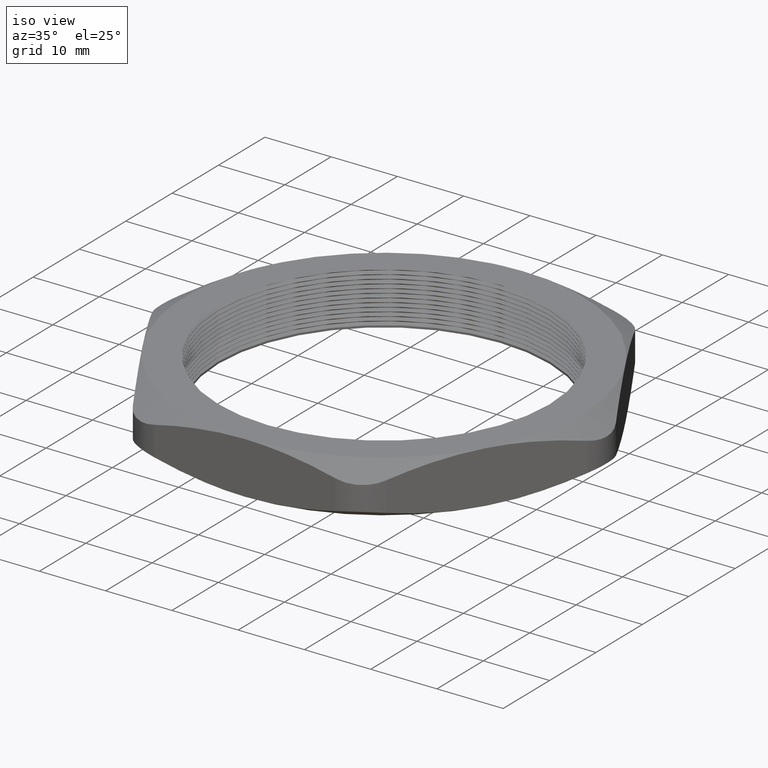
[diagram: clean part render]
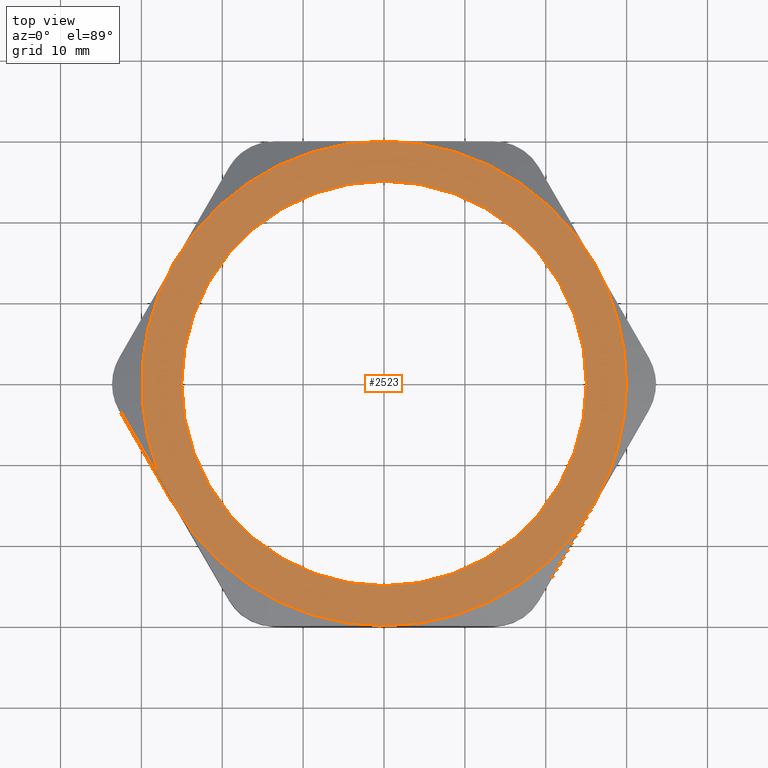
[diagram: tour spotlight — one face highlighted and labeled with its STEP entity id]
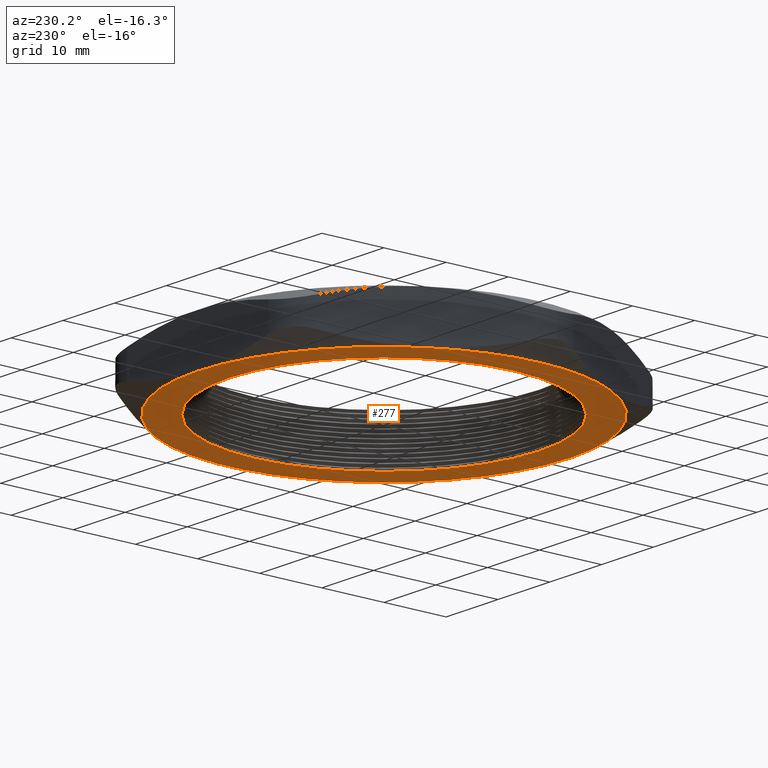
[diagram: tour spotlight — one face highlighted and labeled with its STEP entity id]
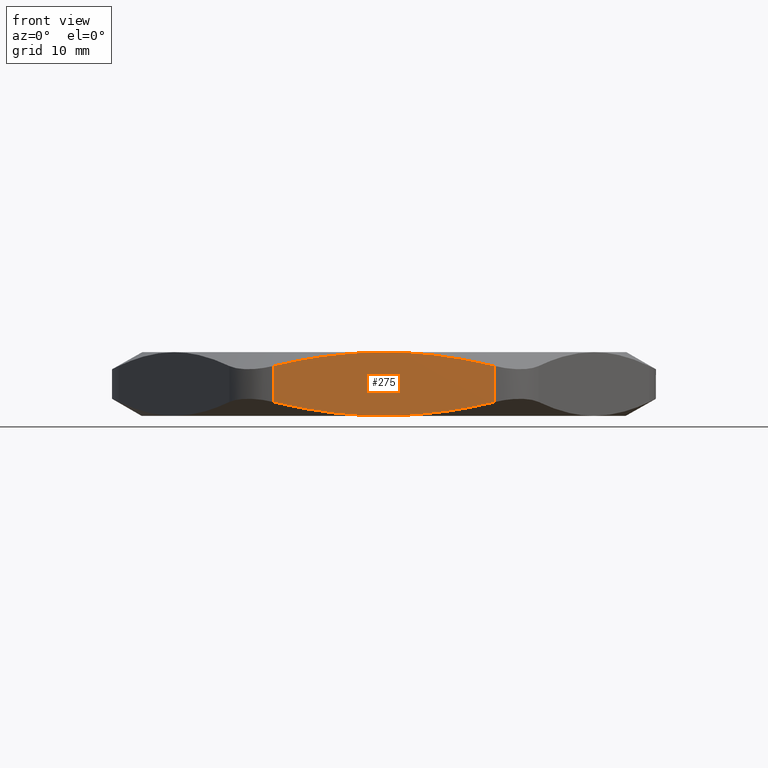
[diagram: tour spotlight — one face highlighted and labeled with its STEP entity id]
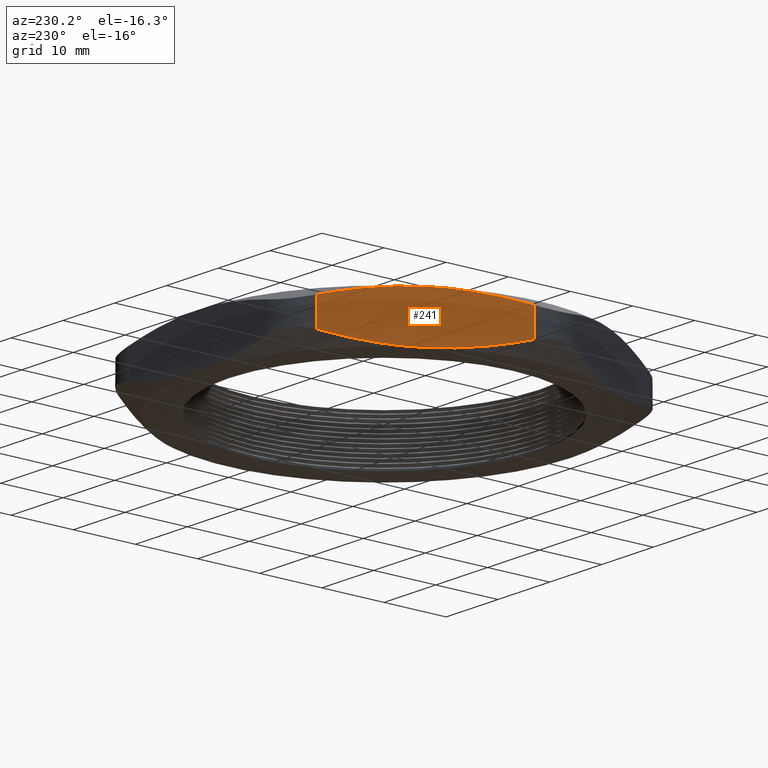
[diagram: tour spotlight — one face highlighted and labeled with its STEP entity id]
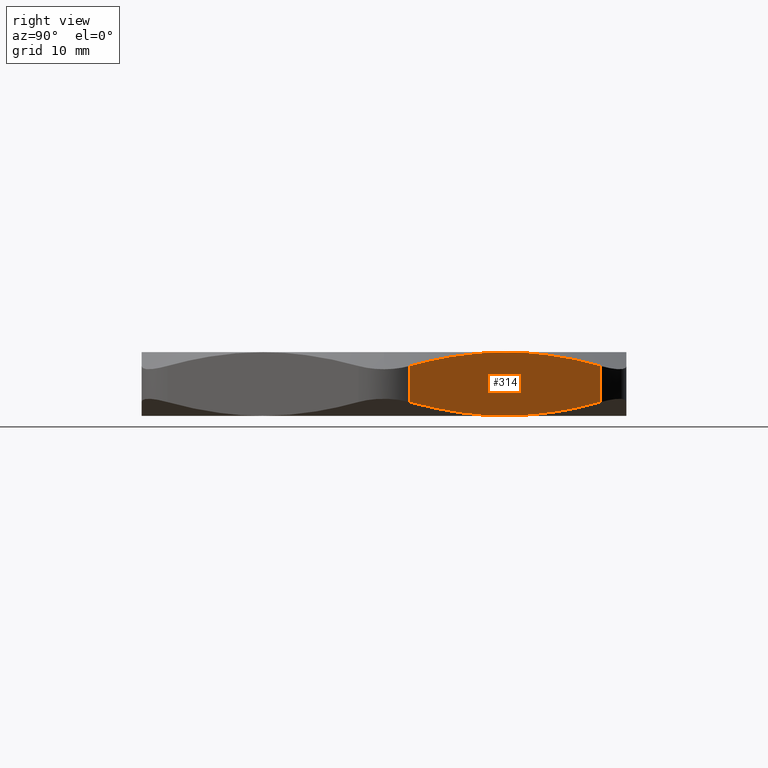
[diagram: tour spotlight — one face highlighted and labeled with its STEP entity id]
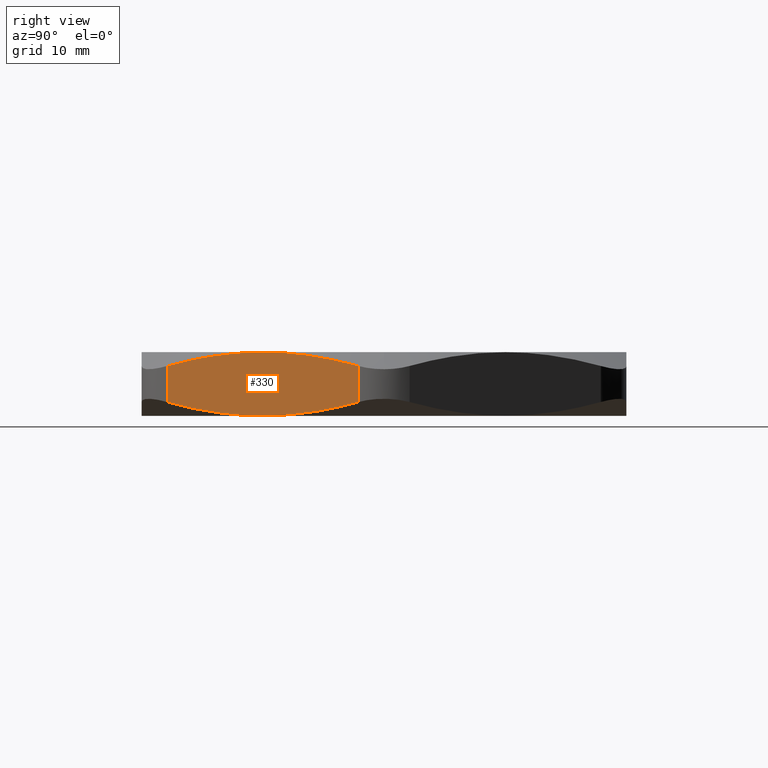
[diagram: tour spotlight — one face highlighted and labeled with its STEP entity id]
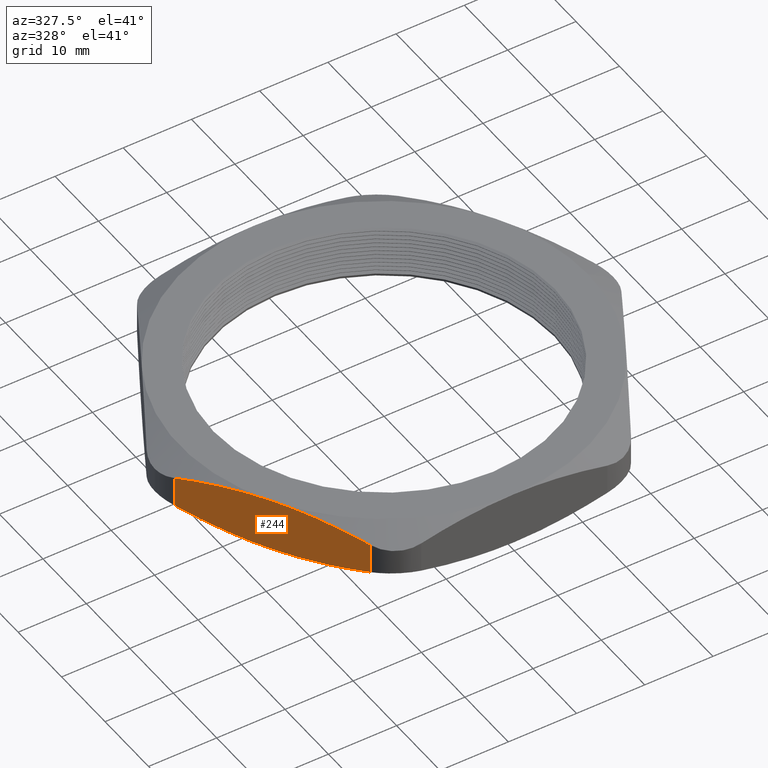
[diagram: tour spotlight — one face highlighted and labeled with its STEP entity id]
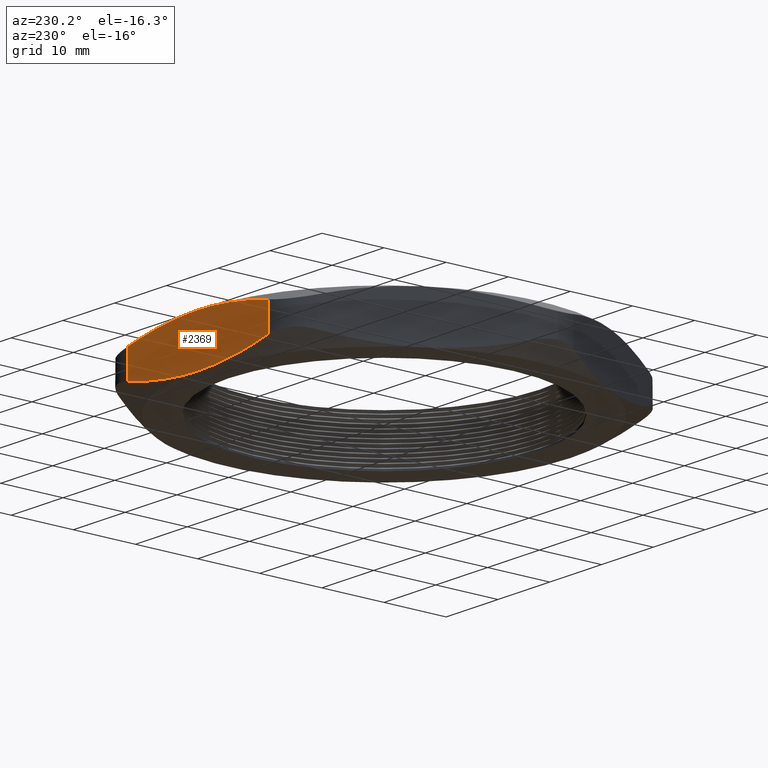
[diagram: tour spotlight — one face highlighted and labeled with its STEP entity id]
A machine part: a face-by-face anatomy tour. The part has 101 B-rep faces; the first image is the clean iso view, then the 8 largest visible faces are spotlighted one at a time (largest first), each with its STEP entity span.

Face 1 — top view, entity #2523. In plain terms, the highlighted planar face has unit normal (0, 0, -1).
Definition (entity closure, byte-faithful):
#208 = VERTEX_POINT ( 'NONE', #739 ) ;
#255 = VERTEX_POINT ( 'NONE', #869 ) ;
#268 = VERTEX_POINT ( 'NONE', #888 ) ;
#290 = VERTEX_POINT ( 'NONE', #953 ) ;
#340 = VERTEX_POINT ( 'NONE', #1065 ) ;
#379 = VERTEX_POINT ( 'NONE', #815 ) ;
#380 = VERTEX_POINT ( 'NONE', #814 ) ;
#382 = EDGE_CURVE ( 'NONE', #380, #379, #1106, .T. ) ;
#739 = CARTESIAN_POINT ( 'NONE',  ( -1.021909976465637600, 0.5900000000000000800, 0.3100000000000000000 ) ) ;
#814 = CARTESIAN_POINT ( 'NONE',  ( 1.180000000000000200, 0.0000000000000000000, 0.3100000000000000000 ) ) ;
#815 = CARTESIAN_POINT ( 'NONE',  ( 1.021909976465638500, 0.5900000000000003000, 0.3100000000000000000 ) ) ;
#869 = CARTESIAN_POINT ( 'NONE',  ( -1.021909976465637900, -0.5899999999999998600, 0.3100000000000000000 ) ) ;
#888 = CARTESIAN_POINT ( 'NONE',  ( 1.182924880895400800E-016, -1.179999999999999900, 0.3100000000000000000 ) ) ;
#953 = CARTESIAN_POINT ( 'NONE',  ( 0.0000000000000000000, 1.180000000000000200, 0.3100000000000000000 ) ) ;
#1065 = CARTESIAN_POINT ( 'NONE',  ( 1.021909976465637600, -0.5900000000000000800, 0.3100000000000000000 ) ) ;
#1102 = DIRECTION ( 'NONE',  ( 1.000000000000000000, 0.0000000000000000000, 0.0000000000000000000 ) ) ;
#1103 = DIRECTION ( 'NONE',  ( 0.0000000000000000000, 0.0000000000000000000, 1.000000000000000000 ) ) ;
#1104 = CARTESIAN_POINT ( 'NONE',  ( 0.0000000000000000000, 0.0000000000000000000, 0.3100000000000000000 ) ) ;
#1105 = AXIS2_PLACEMENT_3D ( 'NONE', #1104, #1103, #1102 ) ;
#1106 = CIRCLE ( 'NONE', #1105, 1.180000000000000200 ) ;
#1389 = CIRCLE ( 'NONE', #1448, 0.9849999999999999900 ) ;
#1439 = DIRECTION ( 'NONE',  ( -1.000000000000000000, 0.0000000000000000000, 0.0000000000000000000 ) ) ;
#1440 = DIRECTION ( 'NONE',  ( 0.0000000000000000000, 0.0000000000000000000, -1.000000000000000000 ) ) ;
#1441 = CARTESIAN_POINT ( 'NONE',  ( 2.731847993664263200E-016, 2.360000000000001200, 0.3100000000000000000 ) ) ;
#1442 = AXIS2_PLACEMENT_3D ( 'NONE', #1441, #1440, #1439 ) ;
#1443 = PLANE ( 'NONE',  #1442 ) ;
#1444 = FACE_OUTER_BOUND ( 'NONE', #2534, .T. ) ;
#1445 = DIRECTION ( 'NONE',  ( 1.000000000000000000, 0.0000000000000000000, 0.0000000000000000000 ) ) ;
#1446 = DIRECTION ( 'NONE',  ( 0.0000000000000000000, 0.0000000000000000000, 1.000000000000000000 ) ) ;
#1447 = CARTESIAN_POINT ( 'NONE',  ( 0.0000000000000000000, 0.0000000000000000000, 0.3100000000000000000 ) ) ;
#1448 = AXIS2_PLACEMENT_3D ( 'NONE', #1447, #1446, #1445 ) ;
#1449 = FACE_BOUND ( 'NONE', #2639, .T. ) ;
#1980 = DIRECTION ( 'NONE',  ( 1.000000000000000000, 0.0000000000000000000, 0.0000000000000000000 ) ) ;
#1981 = DIRECTION ( 'NONE',  ( 0.0000000000000000000, 0.0000000000000000000, 1.000000000000000000 ) ) ;
#1982 = CARTESIAN_POINT ( 'NONE',  ( 0.0000000000000000000, 0.0000000000000000000, 0.3100000000000000000 ) ) ;
#1983 = AXIS2_PLACEMENT_3D ( 'NONE', #1982, #1981, #1980 ) ;
#1984 = CIRCLE ( 'NONE', #1983, 0.9849999999999999900 ) ;
#1985 = CARTESIAN_POINT ( 'NONE',  ( 0.9849999999999999900, 1.218523565151616600E-016, 0.3100000000000000000 ) ) ;
#1986 = CARTESIAN_POINT ( 'NONE',  ( -0.9849999999999999900, 0.0000000000000000000, 0.3100000000000000000 ) ) ;
#2118 = DIRECTION ( 'NONE',  ( 0.0000000000000000000, 0.0000000000000000000, 1.000000000000000000 ) ) ;
#2119 = CARTESIAN_POINT ( 'NONE',  ( 0.0000000000000000000, 0.0000000000000000000, 0.3100000000000000000 ) ) ;
#2120 = AXIS2_PLACEMENT_3D ( 'NONE', #2119, #2118, #2166 ) ;
#2121 = CIRCLE ( 'NONE', #2120, 1.180000000000000200 ) ;
#2122 = CARTESIAN_POINT ( 'NONE',  ( 0.0000000000000000000, 0.0000000000000000000, 0.3100000000000000000 ) ) ;
#2144 = CARTESIAN_POINT ( 'NONE',  ( 0.0000000000000000000, 0.0000000000000000000, 0.3100000000000000000 ) ) ;
#2145 = AXIS2_PLACEMENT_3D ( 'NONE', #2144, #2211, #2210 ) ;
#2146 = CIRCLE ( 'NONE', #2145, 1.180000000000000200 ) ;
#2147 = DIRECTION ( 'NONE',  ( 1.000000000000000000, 0.0000000000000000000, 0.0000000000000000000 ) ) ;
#2148 = DIRECTION ( 'NONE',  ( 0.0000000000000000000, 0.0000000000000000000, 1.000000000000000000 ) ) ;
#2149 = CARTESIAN_POINT ( 'NONE',  ( 0.0000000000000000000, 0.0000000000000000000, 0.3100000000000000000 ) ) ;
#2150 = AXIS2_PLACEMENT_3D ( 'NONE', #2149, #2148, #2147 ) ;
#2151 = CIRCLE ( 'NONE', #2150, 1.180000000000000200 ) ;
#2152 = DIRECTION ( 'NONE',  ( 1.000000000000000000, 0.0000000000000000000, 0.0000000000000000000 ) ) ;
#2153 = DIRECTION ( 'NONE',  ( 0.0000000000000000000, 0.0000000000000000000, 1.000000000000000000 ) ) ;
#2154 = CARTESIAN_POINT ( 'NONE',  ( 0.0000000000000000000, 0.0000000000000000000, 0.3100000000000000000 ) ) ;
#2155 = AXIS2_PLACEMENT_3D ( 'NONE', #2154, #2153, #2152 ) ;
#2156 = CIRCLE ( 'NONE', #2155, 1.180000000000000200 ) ;
#2157 = DIRECTION ( 'NONE',  ( 1.000000000000000000, 0.0000000000000000000, 0.0000000000000000000 ) ) ;
#2158 = DIRECTION ( 'NONE',  ( 0.0000000000000000000, 0.0000000000000000000, 1.000000000000000000 ) ) ;
#2159 = CARTESIAN_POINT ( 'NONE',  ( 0.0000000000000000000, 0.0000000000000000000, 0.3100000000000000000 ) ) ;
#2160 = AXIS2_PLACEMENT_3D ( 'NONE', #2159, #2158, #2157 ) ;
#2161 = CIRCLE ( 'NONE', #2160, 1.180000000000000200 ) ;
#2162 = DIRECTION ( 'NONE',  ( 1.000000000000000000, 0.0000000000000000000, 0.0000000000000000000 ) ) ;
#2163 = DIRECTION ( 'NONE',  ( 0.0000000000000000000, 0.0000000000000000000, 1.000000000000000000 ) ) ;
#2164 = AXIS2_PLACEMENT_3D ( 'NONE', #2122, #2163, #2162 ) ;
#2165 = CIRCLE ( 'NONE', #2164, 1.180000000000000200 ) ;
#2166 = DIRECTION ( 'NONE',  ( 1.000000000000000000, 0.0000000000000000000, 0.0000000000000000000 ) ) ;
#2210 = DIRECTION ( 'NONE',  ( 1.000000000000000000, 0.0000000000000000000, 0.0000000000000000000 ) ) ;
#2211 = DIRECTION ( 'NONE',  ( 0.0000000000000000000, 0.0000000000000000000, 1.000000000000000000 ) ) ;
#2515 = ORIENTED_EDGE ( 'NONE', *, *, #2904, .T. ) ;
#2518 = EDGE_CURVE ( 'NONE', #2790, #2789, #1389, .T. ) ;
#2519 = ORIENTED_EDGE ( 'NONE', *, *, #2791, .F. ) ;
#2520 = ORIENTED_EDGE ( 'NONE', *, *, #2518, .F. ) ;
#2523 = ADVANCED_FACE ( 'NONE', ( #1449, #1444 ), #1443, .F. ) ;
#2534 = EDGE_LOOP ( 'NONE', ( #2515, #2900, #2898, #2896, #2893, #2891, #2892 ) ) ;
#2639 = EDGE_LOOP ( 'NONE', ( #2519, #2520 ) ) ;
#2789 = VERTEX_POINT ( 'NONE', #1986 ) ;
#2790 = VERTEX_POINT ( 'NONE', #1985 ) ;
#2791 = EDGE_CURVE ( 'NONE', #2789, #2790, #1984, .T. ) ;
#2890 = EDGE_CURVE ( 'NONE', #379, #290, #2121, .T. ) ;
#2891 = ORIENTED_EDGE ( 'NONE', *, *, #382, .T. ) ;
#2892 = ORIENTED_EDGE ( 'NONE', *, *, #2890, .T. ) ;
#2893 = ORIENTED_EDGE ( 'NONE', *, *, #2894, .T. ) ;
#2894 = EDGE_CURVE ( 'NONE', #340, #380, #2165, .T. ) ;
#2895 = EDGE_CURVE ( 'NONE', #268, #340, #2161, .T. ) ;
#2896 = ORIENTED_EDGE ( 'NONE', *, *, #2895, .T. ) ;
#2898 = ORIENTED_EDGE ( 'NONE', *, *, #2899, .T. ) ;
#2899 = EDGE_CURVE ( 'NONE', #255, #268, #2156, .T. ) ;
#2900 = ORIENTED_EDGE ( 'NONE', *, *, #2902, .T. ) ;
#2902 = EDGE_CURVE ( 'NONE', #208, #255, #2151, .T. ) ;
#2904 = EDGE_CURVE ( 'NONE', #290, #208, #2146, .T. ) ;

Face 2 — auxiliary view, entity #277. In plain terms, the highlighted planar face has unit normal (0, 0, -1).
Definition (entity closure, byte-faithful):
#28 = ORIENTED_EDGE ( 'NONE', *, *, #29, .T. ) ;
#29 = EDGE_CURVE ( 'NONE', #335, #284, #404, .T. ) ;
#120 = EDGE_CURVE ( 'NONE', #126, #135, #592, .T. ) ;
#126 = VERTEX_POINT ( 'NONE', #573 ) ;
#134 = EDGE_CURVE ( 'NONE', #135, #126, #623, .T. ) ;
#135 = VERTEX_POINT ( 'NONE', #619 ) ;
#249 = VERTEX_POINT ( 'NONE', #829 ) ;
#277 = ADVANCED_FACE ( 'NONE', ( #921, #920 ), #917, .T. ) ;
#278 = EDGE_LOOP ( 'NONE', ( #279, #280 ) ) ;
#279 = ORIENTED_EDGE ( 'NONE', *, *, #134, .T. ) ;
#280 = ORIENTED_EDGE ( 'NONE', *, *, #120, .T. ) ;
#281 = EDGE_LOOP ( 'NONE', ( #341, #343, #344, #346, #348, #28, #2513 ) ) ;
#284 = VERTEX_POINT ( 'NONE', #899 ) ;
#321 = VERTEX_POINT ( 'NONE', #998 ) ;
#335 = VERTEX_POINT ( 'NONE', #1018 ) ;
#341 = ORIENTED_EDGE ( 'NONE', *, *, #342, .T. ) ;
#342 = EDGE_CURVE ( 'NONE', #249, #2507, #1064, .T. ) ;
#343 = ORIENTED_EDGE ( 'NONE', *, *, #2509, .T. ) ;
#344 = ORIENTED_EDGE ( 'NONE', *, *, #345, .T. ) ;
#345 = EDGE_CURVE ( 'NONE', #2752, #598, #1059, .T. ) ;
#346 = ORIENTED_EDGE ( 'NONE', *, *, #347, .T. ) ;
#347 = EDGE_CURVE ( 'NONE', #598, #321, #1054, .T. ) ;
#348 = ORIENTED_EDGE ( 'NONE', *, *, #349, .T. ) ;
#349 = EDGE_CURVE ( 'NONE', #321, #335, #1048, .T. ) ;
#401 = DIRECTION ( 'NONE',  ( -1.000000000000000000, 0.0000000000000000000, 0.0000000000000000000 ) ) ;
#402 = DIRECTION ( 'NONE',  ( 0.0000000000000000000, 0.0000000000000000000, -1.000000000000000000 ) ) ;
#403 = AXIS2_PLACEMENT_3D ( 'NONE', #409, #402, #401 ) ;
#404 = CIRCLE ( 'NONE', #403, 1.180000000000000200 ) ;
#409 = CARTESIAN_POINT ( 'NONE',  ( 0.0000000000000000000, 0.0000000000000000000, 0.0000000000000000000 ) ) ;
#573 = CARTESIAN_POINT ( 'NONE',  ( 0.9849999999999999900, 1.206277097160143100E-016, 0.0000000000000000000 ) ) ;
#588 = DIRECTION ( 'NONE',  ( 1.000000000000000000, 0.0000000000000000000, 0.0000000000000000000 ) ) ;
#589 = DIRECTION ( 'NONE',  ( 0.0000000000000000000, 0.0000000000000000000, 1.000000000000000000 ) ) ;
#590 = CARTESIAN_POINT ( 'NONE',  ( 0.0000000000000000000, 0.0000000000000000000, 0.0000000000000000000 ) ) ;
#591 = AXIS2_PLACEMENT_3D ( 'NONE', #590, #589, #588 ) ;
#592 = CIRCLE ( 'NONE', #591, 0.9849999999999999900 ) ;
#598 = VERTEX_POINT ( 'NONE', #1095 ) ;
#619 = CARTESIAN_POINT ( 'NONE',  ( -0.9849999999999999900, 0.0000000000000000000, 0.0000000000000000000 ) ) ;
#620 = DIRECTION ( 'NONE',  ( 1.000000000000000000, 0.0000000000000000000, 0.0000000000000000000 ) ) ;
#621 = DIRECTION ( 'NONE',  ( 0.0000000000000000000, 0.0000000000000000000, 1.000000000000000000 ) ) ;
#622 = AXIS2_PLACEMENT_3D ( 'NONE', #627, #621, #620 ) ;
#623 = CIRCLE ( 'NONE', #622, 0.9849999999999999900 ) ;
#627 = CARTESIAN_POINT ( 'NONE',  ( 0.0000000000000000000, 0.0000000000000000000, 0.0000000000000000000 ) ) ;
#829 = CARTESIAN_POINT ( 'NONE',  ( -1.021909976465638100, -0.5899999999999997500, 0.0000000000000000000 ) ) ;
#899 = CARTESIAN_POINT ( 'NONE',  ( 1.182924880895401000E-016, -1.180000000000000200, 0.0000000000000000000 ) ) ;
#904 = DIRECTION ( 'NONE',  ( -1.000000000000000000, 0.0000000000000000000, 0.0000000000000000000 ) ) ;
#905 = DIRECTION ( 'NONE',  ( 0.0000000000000000000, 0.0000000000000000000, -1.000000000000000000 ) ) ;
#906 = AXIS2_PLACEMENT_3D ( 'NONE', #918, #905, #904 ) ;
#917 = PLANE ( 'NONE',  #906 ) ;
#918 = CARTESIAN_POINT ( 'NONE',  ( 2.731847993664263200E-016, 2.360000000000001200, 0.0000000000000000000 ) ) ;
#920 = FACE_OUTER_BOUND ( 'NONE', #281, .T. ) ;
#921 = FACE_BOUND ( 'NONE', #278, .T. ) ;
#998 = CARTESIAN_POINT ( 'NONE',  ( 1.021909976465637900, 0.5899999999999999700, 0.0000000000000000000 ) ) ;
#1018 = CARTESIAN_POINT ( 'NONE',  ( 1.021909976465637600, -0.5900000000000001900, 0.0000000000000000000 ) ) ;
#1044 = DIRECTION ( 'NONE',  ( -1.000000000000000000, 0.0000000000000000000, 0.0000000000000000000 ) ) ;
#1045 = DIRECTION ( 'NONE',  ( 0.0000000000000000000, 0.0000000000000000000, -1.000000000000000000 ) ) ;
#1046 = CARTESIAN_POINT ( 'NONE',  ( 0.0000000000000000000, 0.0000000000000000000, 0.0000000000000000000 ) ) ;
#1047 = AXIS2_PLACEMENT_3D ( 'NONE', #1046, #1045, #1044 ) ;
#1048 = CIRCLE ( 'NONE', #1047, 1.180000000000000200 ) ;
#1050 = DIRECTION ( 'NONE',  ( -1.000000000000000000, 0.0000000000000000000, 0.0000000000000000000 ) ) ;
#1051 = DIRECTION ( 'NONE',  ( 0.0000000000000000000, 0.0000000000000000000, -1.000000000000000000 ) ) ;
#1052 = CARTESIAN_POINT ( 'NONE',  ( 0.0000000000000000000, 0.0000000000000000000, 0.0000000000000000000 ) ) ;
#1053 = AXIS2_PLACEMENT_3D ( 'NONE', #1052, #1051, #1050 ) ;
#1054 = CIRCLE ( 'NONE', #1053, 1.180000000000000200 ) ;
#1055 = DIRECTION ( 'NONE',  ( -1.000000000000000000, 0.0000000000000000000, 0.0000000000000000000 ) ) ;
#1056 = DIRECTION ( 'NONE',  ( 0.0000000000000000000, 0.0000000000000000000, -1.000000000000000000 ) ) ;
#1057 = CARTESIAN_POINT ( 'NONE',  ( 0.0000000000000000000, 0.0000000000000000000, 0.0000000000000000000 ) ) ;
#1058 = AXIS2_PLACEMENT_3D ( 'NONE', #1057, #1056, #1055 ) ;
#1059 = CIRCLE ( 'NONE', #1058, 1.180000000000000200 ) ;
#1060 = DIRECTION ( 'NONE',  ( -1.000000000000000000, 0.0000000000000000000, 0.0000000000000000000 ) ) ;
#1061 = DIRECTION ( 'NONE',  ( 0.0000000000000000000, 0.0000000000000000000, -1.000000000000000000 ) ) ;
#1062 = CARTESIAN_POINT ( 'NONE',  ( 0.0000000000000000000, 0.0000000000000000000, 0.0000000000000000000 ) ) ;
#1063 = AXIS2_PLACEMENT_3D ( 'NONE', #1062, #1061, #1060 ) ;
#1064 = CIRCLE ( 'NONE', #1063, 1.180000000000000200 ) ;
#1095 = CARTESIAN_POINT ( 'NONE',  ( 0.0000000000000000000, 1.180000000000000200, 0.0000000000000000000 ) ) ;
#1396 = DIRECTION ( 'NONE',  ( -1.000000000000000000, 0.0000000000000000000, 0.0000000000000000000 ) ) ;
#1397 = DIRECTION ( 'NONE',  ( 0.0000000000000000000, 0.0000000000000000000, -1.000000000000000000 ) ) ;
#1398 = CARTESIAN_POINT ( 'NONE',  ( 0.0000000000000000000, 0.0000000000000000000, 0.0000000000000000000 ) ) ;
#1399 = AXIS2_PLACEMENT_3D ( 'NONE', #1398, #1397, #1396 ) ;
#1400 = CIRCLE ( 'NONE', #1399, 1.180000000000000200 ) ;
#1411 = DIRECTION ( 'NONE',  ( -1.000000000000000000, 0.0000000000000000000, 0.0000000000000000000 ) ) ;
#1412 = DIRECTION ( 'NONE',  ( 0.0000000000000000000, 0.0000000000000000000, -1.000000000000000000 ) ) ;
#1413 = CARTESIAN_POINT ( 'NONE',  ( 0.0000000000000000000, 0.0000000000000000000, 0.0000000000000000000 ) ) ;
#1414 = AXIS2_PLACEMENT_3D ( 'NONE', #1413, #1412, #1411 ) ;
#1415 = CIRCLE ( 'NONE', #1414, 1.180000000000000200 ) ;
#1416 = CARTESIAN_POINT ( 'NONE',  ( -1.180000000000000200, 0.0000000000000000000, 0.0000000000000000000 ) ) ;
#1893 = CARTESIAN_POINT ( 'NONE',  ( -1.021909976465637600, 0.5900000000000001900, 0.0000000000000000000 ) ) ;
#2507 = VERTEX_POINT ( 'NONE', #1416 ) ;
#2509 = EDGE_CURVE ( 'NONE', #2507, #2752, #1415, .T. ) ;
#2513 = ORIENTED_EDGE ( 'NONE', *, *, #2514, .T. ) ;
#2514 = EDGE_CURVE ( 'NONE', #284, #249, #1400, .T. ) ;
#2752 = VERTEX_POINT ( 'NONE', #1893 ) ;

Face 3 — front view, entity #275. In plain terms, the highlighted planar face has unit normal (-0, 1, 0).
Definition (entity closure, byte-faithful):
#45 = VERTEX_POINT ( 'NONE', #431 ) ;
#46 = ORIENTED_EDGE ( 'NONE', *, *, #282, .T. ) ;
#268 = VERTEX_POINT ( 'NONE', #888 ) ;
#269 = EDGE_CURVE ( 'NONE', #268, #45, #887, .T. ) ;
#270 = ORIENTED_EDGE ( 'NONE', *, *, #272, .F. ) ;
#271 = VERTEX_POINT ( 'NONE', #886 ) ;
#272 = EDGE_CURVE ( 'NONE', #273, #268, #874, .T. ) ;
#273 = VERTEX_POINT ( 'NONE', #873 ) ;
#274 = ORIENTED_EDGE ( 'NONE', *, *, #326, .T. ) ;
#275 = ADVANCED_FACE ( 'NONE', ( #875 ), #872, .F. ) ;
#282 = EDGE_CURVE ( 'NONE', #271, #45, #903, .T. ) ;
#283 = ORIENTED_EDGE ( 'NONE', *, *, #2535, .F. ) ;
#284 = VERTEX_POINT ( 'NONE', #899 ) ;
#326 = EDGE_CURVE ( 'NONE', #273, #327, #1036, .T. ) ;
#327 = VERTEX_POINT ( 'NONE', #1032 ) ;
#328 = ORIENTED_EDGE ( 'NONE', *, *, #329, .F. ) ;
#329 = EDGE_CURVE ( 'NONE', #284, #327, #1031, .T. ) ;
#350 = EDGE_LOOP ( 'NONE', ( #283, #46, #351, #270, #274, #328 ) ) ;
#351 = ORIENTED_EDGE ( 'NONE', *, *, #269, .F. ) ;
#431 = CARTESIAN_POINT ( 'NONE',  ( 0.5369357503463517700, -1.179999999999999900, 0.2427859541343050900 ) ) ;
#871 = CARTESIAN_POINT ( 'NONE',  ( -0.5369357503463523300, -1.179999999999999900, 0.2427859541343048700 ) ) ;
#872 = PLANE ( 'NONE',  #925 ) ;
#873 = CARTESIAN_POINT ( 'NONE',  ( -0.5369357503463523300, -1.179999999999999900, 0.2427859541343048700 ) ) ;
#874 = B_SPLINE_CURVE_WITH_KNOTS ( 'NONE', 3,
 ( #871, #930, #929, #928, #927, #926 ),
 .UNSPECIFIED., .F., .F.,
 ( 4, 2, 4 ),
 ( 0.03544491570111407700, 0.04231837440594499200, 0.04919183311077591400 ),
 .UNSPECIFIED. ) ;
#875 = FACE_OUTER_BOUND ( 'NONE', #350, .T. ) ;
#876 = CARTESIAN_POINT ( 'NONE',  ( 0.5369357503463517700, -1.179999999999999900, 0.2427859541343050900 ) ) ;
#877 = CARTESIAN_POINT ( 'NONE',  ( 0.4496078843157639300, -1.180000000000000200, 0.2636678267212728100 ) ) ;
#878 = CARTESIAN_POINT ( 'NONE',  ( 0.3612328827272186500, -1.179999999999999900, 0.2805846981284586500 ) ) ;
#879 = CARTESIAN_POINT ( 'NONE',  ( 0.2490155983964343100, -1.179999999999999900, 0.2951099322760525300 ) ) ;
#880 = CARTESIAN_POINT ( 'NONE',  ( 0.2264847364169944900, -1.179999999999999900, 0.2976840177752515500 ) ) ;
#881 = CARTESIAN_POINT ( 'NONE',  ( 0.1812379093699328600, -1.179999999999999900, 0.3021312919724253300 ) ) ;
#882 = CARTESIAN_POINT ( 'NONE',  ( 0.1584856043568611300, -1.179999999999999700, 0.3040059380878915600 ) ) ;
#883 = CARTESIAN_POINT ( 'NONE',  ( 0.09040044257290037700, -1.179999999999999900, 0.3084998303428825900 ) ) ;
#884 = CARTESIAN_POINT ( 'NONE',  ( 0.04513680144219016400, -1.179999999999999900, 0.3100000000000001600 ) ) ;
#885 = CARTESIAN_POINT ( 'NONE',  ( 1.182924880895400800E-016, -1.179999999999999900, 0.3100000000000000000 ) ) ;
#886 = CARTESIAN_POINT ( 'NONE',  ( 0.5369357503463517700, -1.179999999999999900, 0.06721404586569487700 ) ) ;
#887 = B_SPLINE_CURVE_WITH_KNOTS ( 'NONE', 3,
 ( #885, #884, #883, #882, #881, #880, #879, #878, #877, #876 ),
 .UNSPECIFIED., .F., .F.,
 ( 4, 2, 2, 2, 4 ),
 ( 0.04919183311077591400, 0.05262236379760327300, 0.05433762914101696000, 0.05605289448443064000, 0.06291395585808536000 ),
 .UNSPECIFIED. ) ;
#888 = CARTESIAN_POINT ( 'NONE',  ( 1.182924880895400800E-016, -1.179999999999999900, 0.3100000000000000000 ) ) ;
#899 = CARTESIAN_POINT ( 'NONE',  ( 1.182924880895401000E-016, -1.180000000000000200, 0.0000000000000000000 ) ) ;
#900 = DIRECTION ( 'NONE',  ( 0.0000000000000000000, 0.0000000000000000000, 1.000000000000000000 ) ) ;
#901 = VECTOR ( 'NONE', #900, 39.37007874015748100 ) ;
#902 = CARTESIAN_POINT ( 'NONE',  ( 0.5369357503463518800, -1.179999999999999900, 0.3100000000000000000 ) ) ;
#903 = LINE ( 'NONE', #902, #901 ) ;
#922 = DIRECTION ( 'NONE',  ( -1.000000000000000000, -1.002478712623221200E-016, 0.0000000000000000000 ) ) ;
#923 = DIRECTION ( 'NONE',  ( -1.002478712623221200E-016, 1.000000000000000000, 0.0000000000000000000 ) ) ;
#924 = CARTESIAN_POINT ( 'NONE',  ( -0.6812733176437589800, -1.179999999999999900, 0.3100000000000000000 ) ) ;
#925 = AXIS2_PLACEMENT_3D ( 'NONE', #924, #923, #922 ) ;
#926 = CARTESIAN_POINT ( 'NONE',  ( 1.182924880895400800E-016, -1.179999999999999900, 0.3100000000000000000 ) ) ;
#927 = CARTESIAN_POINT ( 'NONE',  ( -0.09043671930186565600, -1.179999999999999900, 0.3100000000000001600 ) ) ;
#928 = CARTESIAN_POINT ( 'NONE',  ( -0.1803601917600434500, -1.179999999999999900, 0.3039296812339011300 ) ) ;
#929 = CARTESIAN_POINT ( 'NONE',  ( -0.3592866603774632100, -1.180000000000000200, 0.2809023044652343400 ) ) ;
#930 = CARTESIAN_POINT ( 'NONE',  ( -0.4483414298499863700, -1.179999999999999700, 0.2639706617955007200 ) ) ;
#1024 = CARTESIAN_POINT ( 'NONE',  ( -0.5369357503463523300, -1.179999999999999900, 0.06721404586569511300 ) ) ;
#1025 = CARTESIAN_POINT ( 'NONE',  ( -0.4483414298499865400, -1.179999999999999900, 0.04602933820449921900 ) ) ;
#1026 = CARTESIAN_POINT ( 'NONE',  ( -0.3592866603774628200, -1.179999999999999500, 0.02909769553476561000 ) ) ;
#1027 = CARTESIAN_POINT ( 'NONE',  ( -0.1803601917600432300, -1.180000000000000200, 0.006070318766098800600 ) ) ;
#1028 = CARTESIAN_POINT ( 'NONE',  ( -0.09043671930186580900, -1.179999999999999500, -1.992861768815628800E-016 ) ) ;
#1029 = CARTESIAN_POINT ( 'NONE',  ( 1.182924880895401000E-016, -1.180000000000000200, 0.0000000000000000000 ) ) ;
#1031 = B_SPLINE_CURVE_WITH_KNOTS ( 'NONE', 3,
 ( #1029, #1028, #1027, #1026, #1025, #1024 ),
 .UNSPECIFIED., .F., .F.,
 ( 4, 2, 4 ),
 ( 0.09629130399620161600, 0.1031685698360218800, 0.1100458356758421500 ),
 .UNSPECIFIED. ) ;
#1032 = CARTESIAN_POINT ( 'NONE',  ( -0.5369357503463523300, -1.179999999999999900, 0.06721404586569511300 ) ) ;
#1033 = DIRECTION ( 'NONE',  ( 0.0000000000000000000, 0.0000000000000000000, -1.000000000000000000 ) ) ;
#1034 = VECTOR ( 'NONE', #1033, 39.37007874015748100 ) ;
#1035 = CARTESIAN_POINT ( 'NONE',  ( -0.5369357503463524400, -1.179999999999999900, 0.3100000000000000000 ) ) ;
#1036 = LINE ( 'NONE', #1035, #1034 ) ;
#1420 = CARTESIAN_POINT ( 'NONE',  ( 0.2490155983964338600, -1.179999999999999500, 0.01489006772394745900 ) ) ;
#1421 = CARTESIAN_POINT ( 'NONE',  ( 0.3612328827272183700, -1.180000000000000200, 0.02941530187154132700 ) ) ;
#1422 = CARTESIAN_POINT ( 'NONE',  ( 0.4496078843157638200, -1.179999999999999700, 0.04633217327872721900 ) ) ;
#1423 = CARTESIAN_POINT ( 'NONE',  ( 0.5369357503463517700, -1.179999999999999900, 0.06721404586569487700 ) ) ;
#1426 = B_SPLINE_CURVE_WITH_KNOTS ( 'NONE', 3,
 ( #1423, #1422, #1421, #1420, #1483, #1482, #1481, #1480, #1479, #1478 ),
 .UNSPECIFIED., .F., .F.,
 ( 4, 2, 2, 2, 4 ),
 ( 0.08256158071241075100, 0.08942644235430619000, 0.09114265776478004700, 0.09285887317525390300, 0.09629130399620161600 ),
 .UNSPECIFIED. ) ;
#1478 = CARTESIAN_POINT ( 'NONE',  ( 1.182924880895401000E-016, -1.180000000000000200, 0.0000000000000000000 ) ) ;
#1479 = CARTESIAN_POINT ( 'NONE',  ( 0.04513680144219000400, -1.179999999999999900, -1.952844464220938100E-016 ) ) ;
#1480 = CARTESIAN_POINT ( 'NONE',  ( 0.09040044257290028000, -1.179999999999999900, 0.001500169657117342900 ) ) ;
#1481 = CARTESIAN_POINT ( 'NONE',  ( 0.1584856043568611300, -1.179999999999999500, 0.005994061912108435800 ) ) ;
#1482 = CARTESIAN_POINT ( 'NONE',  ( 0.1812379093699325600, -1.179999999999999900, 0.007868708027574630400 ) ) ;
#1483 = CARTESIAN_POINT ( 'NONE',  ( 0.2264847364169940700, -1.179999999999999500, 0.01231598222474831000 ) ) ;
#2535 = EDGE_CURVE ( 'NONE', #271, #284, #1426, .T. ) ;

Face 4 — auxiliary view, entity #241. In plain terms, the highlighted planar face has unit normal (0.866, -0.5, 0).
Definition (entity closure, byte-faithful):
#202 = ORIENTED_EDGE ( 'NONE', *, *, #2750, .F. ) ;
#203 = ORIENTED_EDGE ( 'NONE', *, *, #204, .T. ) ;
#204 = EDGE_CURVE ( 'NONE', #2745, #205, #750, .T. ) ;
#205 = VERTEX_POINT ( 'NONE', #741 ) ;
#206 = ORIENTED_EDGE ( 'NONE', *, *, #207, .F. ) ;
#207 = EDGE_CURVE ( 'NONE', #208, #205, #740, .T. ) ;
#208 = VERTEX_POINT ( 'NONE', #739 ) ;
#209 = ORIENTED_EDGE ( 'NONE', *, *, #210, .F. ) ;
#210 = EDGE_CURVE ( 'NONE', #211, #208, #730, .T. ) ;
#211 = VERTEX_POINT ( 'NONE', #729 ) ;
#212 = ORIENTED_EDGE ( 'NONE', *, *, #213, .T. ) ;
#213 = EDGE_CURVE ( 'NONE', #211, #214, #782, .T. ) ;
#214 = VERTEX_POINT ( 'NONE', #778 ) ;
#215 = ORIENTED_EDGE ( 'NONE', *, *, #243, .F. ) ;
#241 = ADVANCED_FACE ( 'NONE', ( #792 ), #791, .F. ) ;
#242 = EDGE_LOOP ( 'NONE', ( #202, #203, #206, #209, #212, #215 ) ) ;
#243 = EDGE_CURVE ( 'NONE', #2752, #214, #785, .T. ) ;
#725 = CARTESIAN_POINT ( 'NONE',  ( -0.9312536539912954500, 0.7470213565529085800, 0.3038445522537130400 ) ) ;
#726 = CARTESIAN_POINT ( 'NONE',  ( -0.8418140550371715500, 0.9019352861500356000, 0.2807479695387029600 ) ) ;
#727 = CARTESIAN_POINT ( 'NONE',  ( -0.7974787547506383400, 0.9787262788151341900, 0.2638460768298027700 ) ) ;
#728 = CARTESIAN_POINT ( 'NONE',  ( -0.7534421012924613600, 1.055000000000000200, 0.2427859541343049300 ) ) ;
#729 = CARTESIAN_POINT ( 'NONE',  ( -0.7534421012924613600, 1.055000000000000200, 0.2427859541343049300 ) ) ;
#730 = B_SPLINE_CURVE_WITH_KNOTS ( 'NONE', 3,
 ( #728, #727, #726, #725, #784, #783 ),
 .UNSPECIFIED., .F., .F.,
 ( 4, 2, 4 ),
 ( 0.003767047510153081200, 0.01063822244227695400, 0.01750939737440082600 ),
 .UNSPECIFIED. ) ;
#731 = CARTESIAN_POINT ( 'NONE',  ( -1.290377851638813600, 0.1250000000000000300, 0.2427859541343050400 ) ) ;
#732 = CARTESIAN_POINT ( 'NONE',  ( -1.246431231723729400, 0.2011177785138445200, 0.2638030191195699400 ) ) ;
#733 = CARTESIAN_POINT ( 'NONE',  ( -1.202143552112761200, 0.2778262897493731800, 0.2807020580561907500 ) ) ;
#734 = CARTESIAN_POINT ( 'NONE',  ( -1.135048905416903300, 0.3940376267424819900, 0.2980438790977824000 ) ) ;
#735 = CARTESIAN_POINT ( 'NONE',  ( -1.112573565966476800, 0.4329660565879781000, 0.3024908025705314000 ) ) ;
#736 = CARTESIAN_POINT ( 'NONE',  ( -1.067381612085253300, 0.5112408168035678100, 0.3084714449772221800 ) ) ;
#737 = CARTESIAN_POINT ( 'NONE',  ( -1.044586880877922200, 0.5507224493995389600, 0.3100000000000000000 ) ) ;
#738 = CARTESIAN_POINT ( 'NONE',  ( -1.021909976465637600, 0.5900000000000000800, 0.3100000000000000000 ) ) ;
#739 = CARTESIAN_POINT ( 'NONE',  ( -1.021909976465637600, 0.5900000000000000800, 0.3100000000000000000 ) ) ;
#740 = B_SPLINE_CURVE_WITH_KNOTS ( 'NONE', 3,
 ( #738, #737, #736, #735, #734, #733, #732, #731 ),
 .UNSPECIFIED., .F., .F.,
 ( 4, 2, 2, 4 ),
 ( 0.01750939737440082600, 0.02093024688783882300, 0.02435109640127682000, 0.03119279542815281400 ),
 .UNSPECIFIED. ) ;
#741 = CARTESIAN_POINT ( 'NONE',  ( -1.290377851638813600, 0.1250000000000000300, 0.2427859541343050400 ) ) ;
#742 = DIRECTION ( 'NONE',  ( 0.0000000000000000000, 0.0000000000000000000, 1.000000000000000000 ) ) ;
#743 = VECTOR ( 'NONE', #742, 39.37007874015748100 ) ;
#744 = CARTESIAN_POINT ( 'NONE',  ( -1.290377851638813600, 0.1250000000000000300, 0.3100000000000000000 ) ) ;
#750 = LINE ( 'NONE', #744, #743 ) ;
#778 = CARTESIAN_POINT ( 'NONE',  ( -0.7534421012924613600, 1.055000000000000200, 0.06721404586569491900 ) ) ;
#779 = DIRECTION ( 'NONE',  ( 0.0000000000000000000, 0.0000000000000000000, -1.000000000000000000 ) ) ;
#780 = VECTOR ( 'NONE', #779, 39.37007874015748100 ) ;
#781 = CARTESIAN_POINT ( 'NONE',  ( -0.7534421012924613600, 1.055000000000000200, 0.3100000000000000000 ) ) ;
#782 = LINE ( 'NONE', #781, #780 ) ;
#783 = CARTESIAN_POINT ( 'NONE',  ( -1.021909976465637600, 0.5900000000000000800, 0.3100000000000000000 ) ) ;
#784 = CARTESIAN_POINT ( 'NONE',  ( -0.9763607710639460300, 0.6688935380001205200, 0.3100000000000001600 ) ) ;
#785 = B_SPLINE_CURVE_WITH_KNOTS ( 'NONE', 3,
 ( #842, #841, #840, #839, #838, #837, #836, #835 ),
 .UNSPECIFIED., .F., .F.,
 ( 4, 2, 2, 4 ),
 ( 0.01750939737440081500, 0.02093024688783881200, 0.02435109640127680600, 0.03119279542815280700 ),
 .UNSPECIFIED. ) ;
#787 = DIRECTION ( 'NONE',  ( 0.5000000000000000000, 0.8660254037844386000, 0.0000000000000000000 ) ) ;
#788 = DIRECTION ( 'NONE',  ( 0.8660254037844387100, -0.5000000000000001100, 0.0000000000000000000 ) ) ;
#789 = CARTESIAN_POINT ( 'NONE',  ( -0.6812733176437580900, 1.180000000000000200, 0.3100000000000000000 ) ) ;
#790 = AXIS2_PLACEMENT_3D ( 'NONE', #789, #788, #787 ) ;
#791 = PLANE ( 'NONE',  #790 ) ;
#792 = FACE_OUTER_BOUND ( 'NONE', #242, .T. ) ;
#835 = CARTESIAN_POINT ( 'NONE',  ( -0.7534421012924613600, 1.055000000000000200, 0.06721404586569491900 ) ) ;
#836 = CARTESIAN_POINT ( 'NONE',  ( -0.7973887212075458900, 0.9788822214861556700, 0.04619698088043001200 ) ) ;
#837 = CARTESIAN_POINT ( 'NONE',  ( -0.8416764008185139100, 0.9021737102506268700, 0.02929794194380929200 ) ) ;
#838 = CARTESIAN_POINT ( 'NONE',  ( -0.9087710475143714300, 0.7859623732575181700, 0.01195612090221761200 ) ) ;
#839 = CARTESIAN_POINT ( 'NONE',  ( -0.9312463869647985600, 0.7470339434120216700, 0.007509197429468694600 ) ) ;
#840 = CARTESIAN_POINT ( 'NONE',  ( -0.9764383408460223200, 0.6687591831964322400, 0.001528555022777905900 ) ) ;
#841 = CARTESIAN_POINT ( 'NONE',  ( -0.9992330720533521000, 0.6292775506004608700, -2.013870853727842000E-016 ) ) ;
#842 = CARTESIAN_POINT ( 'NONE',  ( -1.021909976465637600, 0.5900000000000001900, 0.0000000000000000000 ) ) ;
#1837 = B_SPLINE_CURVE_WITH_KNOTS ( 'NONE', 3,
 ( #1892, #1891, #1890, #1889, #1888, #1887 ),
 .UNSPECIFIED., .F., .F.,
 ( 4, 2, 4 ),
 ( 0.003767047510153073400, 0.01063822244227694300, 0.01750939737440081500 ),
 .UNSPECIFIED. ) ;
#1846 = CARTESIAN_POINT ( 'NONE',  ( -1.290377851638813600, 0.1250000000000001100, 0.06721404586569496000 ) ) ;
#1887 = CARTESIAN_POINT ( 'NONE',  ( -1.021909976465637600, 0.5900000000000001900, 0.0000000000000000000 ) ) ;
#1888 = CARTESIAN_POINT ( 'NONE',  ( -1.067459181867329100, 0.5111064619998796400, -1.886148956563119100E-016 ) ) ;
#1889 = CARTESIAN_POINT ( 'NONE',  ( -1.112566298939979400, 0.4329786434470912500, 0.006155447746286841900 ) ) ;
#1890 = CARTESIAN_POINT ( 'NONE',  ( -1.202005897894103700, 0.2780647138499643400, 0.02925203046129696800 ) ) ;
#1891 = CARTESIAN_POINT ( 'NONE',  ( -1.246341198180636700, 0.2012737211848658100, 0.04615392317019707100 ) ) ;
#1892 = CARTESIAN_POINT ( 'NONE',  ( -1.290377851638813600, 0.1250000000000001100, 0.06721404586569496000 ) ) ;
#1893 = CARTESIAN_POINT ( 'NONE',  ( -1.021909976465637600, 0.5900000000000001900, 0.0000000000000000000 ) ) ;
#2745 = VERTEX_POINT ( 'NONE', #1846 ) ;
#2750 = EDGE_CURVE ( 'NONE', #2745, #2752, #1837, .T. ) ;
#2752 = VERTEX_POINT ( 'NONE', #1893 ) ;

Face 5 — right view, entity #314. In plain terms, the highlighted planar face has unit normal (-0.866, -0.5, 0).
Definition (entity closure, byte-faithful):
#37 = EDGE_LOOP ( 'NONE', ( #315, #316, #319, #322, #2363, #2367 ) ) ;
#47 = VERTEX_POINT ( 'NONE', #433 ) ;
#91 = EDGE_CURVE ( 'NONE', #47, #379, #530, .T. ) ;
#314 = ADVANCED_FACE ( 'NONE', ( #960 ), #961, .F. ) ;
#315 = ORIENTED_EDGE ( 'NONE', *, *, #91, .F. ) ;
#316 = ORIENTED_EDGE ( 'NONE', *, *, #317, .T. ) ;
#317 = EDGE_CURVE ( 'NONE', #47, #318, #1004, .T. ) ;
#318 = VERTEX_POINT ( 'NONE', #1000 ) ;
#319 = ORIENTED_EDGE ( 'NONE', *, *, #320, .F. ) ;
#320 = EDGE_CURVE ( 'NONE', #321, #318, #999, .T. ) ;
#321 = VERTEX_POINT ( 'NONE', #998 ) ;
#322 = ORIENTED_EDGE ( 'NONE', *, *, #323, .F. ) ;
#323 = EDGE_CURVE ( 'NONE', #324, #321, #988, .T. ) ;
#324 = VERTEX_POINT ( 'NONE', #1043 ) ;
#325 = VERTEX_POINT ( 'NONE', #989 ) ;
#379 = VERTEX_POINT ( 'NONE', #815 ) ;
#433 = CARTESIAN_POINT ( 'NONE',  ( 1.290377851638813800, 0.1250000000000005600, 0.2427859541343048200 ) ) ;
#521 = CARTESIAN_POINT ( 'NONE',  ( 1.021909976465638500, 0.5900000000000003000, 0.3100000000000000000 ) ) ;
#522 = CARTESIAN_POINT ( 'NONE',  ( 1.067459181867329600, 0.5111064619998800800, 0.3099999999999997800 ) ) ;
#523 = CARTESIAN_POINT ( 'NONE',  ( 1.112566298939980000, 0.4329786434470917500, 0.3038445522537126500 ) ) ;
#524 = CARTESIAN_POINT ( 'NONE',  ( 1.202005897894103900, 0.2780647138499648400, 0.2807479695387026200 ) ) ;
#525 = CARTESIAN_POINT ( 'NONE',  ( 1.246341198180636700, 0.2012737211848662200, 0.2638460768298026000 ) ) ;
#526 = CARTESIAN_POINT ( 'NONE',  ( 1.290377851638813800, 0.1250000000000005600, 0.2427859541343048200 ) ) ;
#530 = B_SPLINE_CURVE_WITH_KNOTS ( 'NONE', 3,
 ( #526, #525, #524, #523, #522, #521 ),
 .UNSPECIFIED., .F., .F.,
 ( 4, 2, 4 ),
 ( 0.003767047510153077700, 0.01063822244227694300, 0.01750939737440080800 ),
 .UNSPECIFIED. ) ;
#815 = CARTESIAN_POINT ( 'NONE',  ( 1.021909976465638500, 0.5900000000000003000, 0.3100000000000000000 ) ) ;
#960 = FACE_OUTER_BOUND ( 'NONE', #37, .T. ) ;
#961 = PLANE ( 'NONE',  #1016 ) ;
#988 = B_SPLINE_CURVE_WITH_KNOTS ( 'NONE', 3,
 ( #1042, #1041, #1040, #1039, #1038, #1037 ),
 .UNSPECIFIED., .F., .F.,
 ( 4, 2, 4 ),
 ( 0.003767047510153075500, 0.01063822244227695000, 0.01750939737440082600 ),
 .UNSPECIFIED. ) ;
#989 = CARTESIAN_POINT ( 'NONE',  ( 0.7534421012924623600, 1.055000000000000400, 0.2427859541343045700 ) ) ;
#990 = CARTESIAN_POINT ( 'NONE',  ( 1.290377851638813800, 0.1250000000000008000, 0.06721404586569518200 ) ) ;
#991 = CARTESIAN_POINT ( 'NONE',  ( 1.246431231723729200, 0.2011177785138452700, 0.04619698088043035900 ) ) ;
#992 = CARTESIAN_POINT ( 'NONE',  ( 1.202143552112761500, 0.2778262897493737900, 0.02929794194380953800 ) ) ;
#993 = CARTESIAN_POINT ( 'NONE',  ( 1.135048905416904200, 0.3940376267424822700, 0.01195612090221791700 ) ) ;
#994 = CARTESIAN_POINT ( 'NONE',  ( 1.112573565966477500, 0.4329660565879783200, 0.007509197429469097900 ) ) ;
#995 = CARTESIAN_POINT ( 'NONE',  ( 1.067381612085254000, 0.5112408168035678100, 0.001528555022778317200 ) ) ;
#996 = CARTESIAN_POINT ( 'NONE',  ( 1.044586880877923300, 0.5507224493995389600, 2.228463649616874200E-016 ) ) ;
#997 = CARTESIAN_POINT ( 'NONE',  ( 1.021909976465637900, 0.5899999999999999700, 0.0000000000000000000 ) ) ;
#998 = CARTESIAN_POINT ( 'NONE',  ( 1.021909976465637900, 0.5899999999999999700, 0.0000000000000000000 ) ) ;
#999 = B_SPLINE_CURVE_WITH_KNOTS ( 'NONE', 3,
 ( #997, #996, #995, #994, #993, #992, #991, #990 ),
 .UNSPECIFIED., .F., .F.,
 ( 4, 2, 2, 4 ),
 ( 0.01750939737440082600, 0.02093024688783881600, 0.02435109640127680600, 0.03119279542815278300 ),
 .UNSPECIFIED. ) ;
#1000 = CARTESIAN_POINT ( 'NONE',  ( 1.290377851638813800, 0.1250000000000008000, 0.06721404586569518200 ) ) ;
#1001 = DIRECTION ( 'NONE',  ( 0.0000000000000000000, 0.0000000000000000000, -1.000000000000000000 ) ) ;
#1002 = VECTOR ( 'NONE', #1001, 39.37007874015748100 ) ;
#1003 = CARTESIAN_POINT ( 'NONE',  ( 1.290377851638813800, 0.1250000000000005600, 0.3100000000000000000 ) ) ;
#1004 = LINE ( 'NONE', #1003, #1002 ) ;
#1005 = DIRECTION ( 'NONE',  ( 0.4999999999999998300, -0.8660254037844386000, 0.0000000000000000000 ) ) ;
#1006 = DIRECTION ( 'NONE',  ( -0.8660254037844387100, -0.4999999999999998900, 0.0000000000000000000 ) ) ;
#1007 = CARTESIAN_POINT ( 'NONE',  ( 1.362546635287517100, 5.210534594967240200E-016, 0.3100000000000000000 ) ) ;
#1016 = AXIS2_PLACEMENT_3D ( 'NONE', #1007, #1006, #1005 ) ;
#1037 = CARTESIAN_POINT ( 'NONE',  ( 1.021909976465637900, 0.5899999999999999700, 0.0000000000000000000 ) ) ;
#1038 = CARTESIAN_POINT ( 'NONE',  ( 0.9763607710639469200, 0.6688935380001203000, 2.051553815554510200E-016 ) ) ;
#1039 = CARTESIAN_POINT ( 'NONE',  ( 0.9312536539912963400, 0.7470213565529085800, 0.006155447746287213100 ) ) ;
#1040 = CARTESIAN_POINT ( 'NONE',  ( 0.8418140550371724400, 0.9019352861500356000, 0.02925203046129732200 ) ) ;
#1041 = CARTESIAN_POINT ( 'NONE',  ( 0.7974787547506387900, 0.9787262788151341900, 0.04615392317019748800 ) ) ;
#1042 = CARTESIAN_POINT ( 'NONE',  ( 0.7534421012924623600, 1.055000000000000200, 0.06721404586569540400 ) ) ;
#1043 = CARTESIAN_POINT ( 'NONE',  ( 0.7534421012924623600, 1.055000000000000200, 0.06721404586569540400 ) ) ;
#1113 = CARTESIAN_POINT ( 'NONE',  ( 0.7534421012924623600, 1.055000000000000400, 0.2427859541343045700 ) ) ;
#1114 = CARTESIAN_POINT ( 'NONE',  ( 0.7973887212075467800, 0.9788822214861558900, 0.2638030191195694400 ) ) ;
#1115 = CARTESIAN_POINT ( 'NONE',  ( 0.8416764008185149100, 0.9021737102506268700, 0.2807020580561903100 ) ) ;
#1116 = CARTESIAN_POINT ( 'NONE',  ( 0.9087710475143722100, 0.7859623732575186100, 0.2980438790977819600 ) ) ;
#1117 = CARTESIAN_POINT ( 'NONE',  ( 0.9312463869647990000, 0.7470339434120217800, 0.3024908025705309600 ) ) ;
#1118 = CARTESIAN_POINT ( 'NONE',  ( 0.9764383408460229900, 0.6687591831964322400, 0.3084714449772217900 ) ) ;
#1119 = CARTESIAN_POINT ( 'NONE',  ( 0.9992330720533527700, 0.6292775506004610900, 0.3099999999999997200 ) ) ;
#1120 = CARTESIAN_POINT ( 'NONE',  ( 1.021909976465638500, 0.5900000000000003000, 0.3100000000000000000 ) ) ;
#1122 = B_SPLINE_CURVE_WITH_KNOTS ( 'NONE', 3,
 ( #1120, #1119, #1118, #1117, #1116, #1115, #1114, #1113 ),
 .UNSPECIFIED., .F., .F.,
 ( 4, 2, 2, 4 ),
 ( 0.01750939737440080800, 0.02093024688783880600, 0.02435109640127679900, 0.03119279542815280000 ),
 .UNSPECIFIED. ) ;
#1125 = DIRECTION ( 'NONE',  ( 0.0000000000000000000, 0.0000000000000000000, 1.000000000000000000 ) ) ;
#1126 = VECTOR ( 'NONE', #1125, 39.37007874015748100 ) ;
#1127 = CARTESIAN_POINT ( 'NONE',  ( 0.7534421012924623600, 1.055000000000000200, 0.3100000000000000000 ) ) ;
#1128 = LINE ( 'NONE', #1127, #1126 ) ;
#2363 = ORIENTED_EDGE ( 'NONE', *, *, #2364, .T. ) ;
#2364 = EDGE_CURVE ( 'NONE', #324, #325, #1128, .T. ) ;
#2365 = EDGE_CURVE ( 'NONE', #379, #325, #1122, .T. ) ;
#2367 = ORIENTED_EDGE ( 'NONE', *, *, #2365, .F. ) ;

Face 6 — right view, entity #330. In plain terms, the highlighted planar face has unit normal (-0.866, 0.5, 0).
Definition (entity closure, byte-faithful):
#38 = VERTEX_POINT ( 'NONE', #397 ) ;
#39 = EDGE_CURVE ( 'NONE', #41, #38, #399, .T. ) ;
#40 = ORIENTED_EDGE ( 'NONE', *, *, #39, .T. ) ;
#41 = VERTEX_POINT ( 'NONE', #441 ) ;
#42 = EDGE_CURVE ( 'NONE', #41, #340, #440, .T. ) ;
#43 = ORIENTED_EDGE ( 'NONE', *, *, #42, .F. ) ;
#44 = EDGE_CURVE ( 'NONE', #340, #338, #432, .T. ) ;
#312 = ORIENTED_EDGE ( 'NONE', *, *, #313, .F. ) ;
#313 = EDGE_CURVE ( 'NONE', #335, #38, #962, .T. ) ;
#330 = ADVANCED_FACE ( 'NONE', ( #1030 ), #1023, .F. ) ;
#331 = EDGE_LOOP ( 'NONE', ( #332, #336, #339, #43, #40, #312 ) ) ;
#332 = ORIENTED_EDGE ( 'NONE', *, *, #333, .F. ) ;
#333 = EDGE_CURVE ( 'NONE', #334, #335, #1017, .T. ) ;
#334 = VERTEX_POINT ( 'NONE', #1077 ) ;
#335 = VERTEX_POINT ( 'NONE', #1018 ) ;
#336 = ORIENTED_EDGE ( 'NONE', *, *, #337, .T. ) ;
#337 = EDGE_CURVE ( 'NONE', #334, #338, #1070, .T. ) ;
#338 = VERTEX_POINT ( 'NONE', #1066 ) ;
#339 = ORIENTED_EDGE ( 'NONE', *, *, #44, .F. ) ;
#340 = VERTEX_POINT ( 'NONE', #1065 ) ;
#395 = DIRECTION ( 'NONE',  ( 0.0000000000000000000, 0.0000000000000000000, -1.000000000000000000 ) ) ;
#396 = CARTESIAN_POINT ( 'NONE',  ( 0.7534421012924615900, -1.054999999999999700, 0.3100000000000000000 ) ) ;
#397 = CARTESIAN_POINT ( 'NONE',  ( 0.7534421012924734700, -1.054999999999979300, 0.06721404586568910400 ) ) ;
#399 = LINE ( 'NONE', #396, #442 ) ;
#423 = CARTESIAN_POINT ( 'NONE',  ( 1.290377851638813800, -0.1249999999999994600, 0.2427859541343049500 ) ) ;
#424 = CARTESIAN_POINT ( 'NONE',  ( 1.246431231723729400, -0.2011177785138440200, 0.2638030191195698800 ) ) ;
#425 = CARTESIAN_POINT ( 'NONE',  ( 1.202143552112761200, -0.2778262897493727900, 0.2807020580561907500 ) ) ;
#426 = CARTESIAN_POINT ( 'NONE',  ( 1.135048905416903500, -0.3940376267424817200, 0.2980438790977824000 ) ) ;
#427 = CARTESIAN_POINT ( 'NONE',  ( 1.112573565966477100, -0.4329660565879777700, 0.3024908025705314000 ) ) ;
#428 = CARTESIAN_POINT ( 'NONE',  ( 1.067381612085253100, -0.5112408168035675900, 0.3084714449772222900 ) ) ;
#429 = CARTESIAN_POINT ( 'NONE',  ( 1.044586880877922400, -0.5507224493995391800, 0.3100000000000000500 ) ) ;
#430 = CARTESIAN_POINT ( 'NONE',  ( 1.021909976465637600, -0.5900000000000000800, 0.3100000000000000000 ) ) ;
#432 = B_SPLINE_CURVE_WITH_KNOTS ( 'NONE', 3,
 ( #430, #429, #428, #427, #426, #425, #424, #423 ),
 .UNSPECIFIED., .F., .F.,
 ( 4, 2, 2, 4 ),
 ( 0.01750939737440081500, 0.02093024688783881600, 0.02435109640127682000, 0.03119279542815282100 ),
 .UNSPECIFIED. ) ;
#434 = CARTESIAN_POINT ( 'NONE',  ( 1.021909976465637600, -0.5900000000000000800, 0.3100000000000000000 ) ) ;
#435 = CARTESIAN_POINT ( 'NONE',  ( 0.9763607710639461400, -0.6688935380001206400, 0.3100000000000001600 ) ) ;
#436 = CARTESIAN_POINT ( 'NONE',  ( 0.9312536539912954500, -0.7470213565529085800, 0.3038445522537131500 ) ) ;
#437 = CARTESIAN_POINT ( 'NONE',  ( 0.8418140550371714400, -0.9019352861500354900, 0.2807479695387029600 ) ) ;
#438 = CARTESIAN_POINT ( 'NONE',  ( 0.7974787547506380100, -0.9787262788151337400, 0.2638460768298029300 ) ) ;
#439 = CARTESIAN_POINT ( 'NONE',  ( 0.7534421012924615900, -1.054999999999999700, 0.2427859541343050700 ) ) ;
#440 = B_SPLINE_CURVE_WITH_KNOTS ( 'NONE', 3,
 ( #439, #438, #437, #436, #435, #434 ),
 .UNSPECIFIED., .F., .F.,
 ( 4, 2, 4 ),
 ( 0.003767047510153076000, 0.01063822244227694700, 0.01750939737440081500 ),
 .UNSPECIFIED. ) ;
#441 = CARTESIAN_POINT ( 'NONE',  ( 0.7534421012924615900, -1.054999999999999700, 0.2427859541343050700 ) ) ;
#442 = VECTOR ( 'NONE', #395, 39.37007874015748100 ) ;
#962 = B_SPLINE_CURVE_WITH_KNOTS ( 'NONE', 3,
 ( #1015, #1014, #1013, #1012, #1011, #1010, #1009, #1008 ),
 .UNSPECIFIED., .F., .F.,
 ( 4, 2, 2, 4 ),
 ( 0.01750939737440083600, 0.02093024688783867700, 0.02435109640127652200, 0.03119279542815220400 ),
 .UNSPECIFIED. ) ;
#1008 = CARTESIAN_POINT ( 'NONE',  ( 0.7534421012924734700, -1.054999999999979300, 0.06721404586568910400 ) ) ;
#1009 = CARTESIAN_POINT ( 'NONE',  ( 0.7973887212075556600, -0.9788822214861381300, 0.04619698088042591800 ) ) ;
#1010 = CARTESIAN_POINT ( 'NONE',  ( 0.8416764008185221300, -0.9021737102506126600, 0.02929794194380660300 ) ) ;
#1011 = CARTESIAN_POINT ( 'NONE',  ( 0.9087710475143767600, -0.7859623732575090600, 0.01195612090221645100 ) ) ;
#1012 = CARTESIAN_POINT ( 'NONE',  ( 0.9312463869648022200, -0.7470339434120145700, 0.007509197429467896600 ) ) ;
#1013 = CARTESIAN_POINT ( 'NONE',  ( 0.9764383408460243200, -0.6687591831964289100, 0.001528555022777643100 ) ) ;
#1014 = CARTESIAN_POINT ( 'NONE',  ( 0.9992330720533527700, -0.6292775506004587600, -2.590120039891397100E-016 ) ) ;
#1015 = CARTESIAN_POINT ( 'NONE',  ( 1.021909976465637600, -0.5900000000000001900, 0.0000000000000000000 ) ) ;
#1017 = B_SPLINE_CURVE_WITH_KNOTS ( 'NONE', 3,
 ( #1076, #1075, #1074, #1073, #1072, #1071 ),
 .UNSPECIFIED., .F., .F.,
 ( 4, 2, 4 ),
 ( 0.003767047510153074700, 0.01063822244227695600, 0.01750939737440083600 ),
 .UNSPECIFIED. ) ;
#1018 = CARTESIAN_POINT ( 'NONE',  ( 1.021909976465637600, -0.5900000000000001900, 0.0000000000000000000 ) ) ;
#1019 = DIRECTION ( 'NONE',  ( -0.5000000000000000000, -0.8660254037844386000, 0.0000000000000000000 ) ) ;
#1020 = DIRECTION ( 'NONE',  ( -0.8660254037844387100, 0.5000000000000001100, 0.0000000000000000000 ) ) ;
#1021 = CARTESIAN_POINT ( 'NONE',  ( 0.6812733176437583100, -1.179999999999999900, 0.3100000000000000000 ) ) ;
#1022 = AXIS2_PLACEMENT_3D ( 'NONE', #1021, #1020, #1019 ) ;
#1023 = PLANE ( 'NONE',  #1022 ) ;
#1030 = FACE_OUTER_BOUND ( 'NONE', #331, .T. ) ;
#1065 = CARTESIAN_POINT ( 'NONE',  ( 1.021909976465637600, -0.5900000000000000800, 0.3100000000000000000 ) ) ;
#1066 = CARTESIAN_POINT ( 'NONE',  ( 1.290377851638813800, -0.1249999999999994600, 0.2427859541343049500 ) ) ;
#1067 = DIRECTION ( 'NONE',  ( 0.0000000000000000000, 0.0000000000000000000, 1.000000000000000000 ) ) ;
#1068 = VECTOR ( 'NONE', #1067, 39.37007874015748100 ) ;
#1069 = CARTESIAN_POINT ( 'NONE',  ( 1.290377851638813800, -0.1249999999999993500, 0.3100000000000000000 ) ) ;
#1070 = LINE ( 'NONE', #1069, #1068 ) ;
#1071 = CARTESIAN_POINT ( 'NONE',  ( 1.021909976465637600, -0.5900000000000001900, 0.0000000000000000000 ) ) ;
#1072 = CARTESIAN_POINT ( 'NONE',  ( 1.067459181867328900, -0.5111064619998795200, -2.502415447321366300E-016 ) ) ;
#1073 = CARTESIAN_POINT ( 'NONE',  ( 1.112566298939979400, -0.4329786434470909700, 0.006155447746286811500 ) ) ;
#1074 = CARTESIAN_POINT ( 'NONE',  ( 1.202005897894103700, -0.2780647138499639000, 0.02925203046129700200 ) ) ;
#1075 = CARTESIAN_POINT ( 'NONE',  ( 1.246341198180637200, -0.2012737211848652000, 0.04615392317019714100 ) ) ;
#1076 = CARTESIAN_POINT ( 'NONE',  ( 1.290377851638813800, -0.1249999999999994000, 0.06721404586569511300 ) ) ;
#1077 = CARTESIAN_POINT ( 'NONE',  ( 1.290377851638813800, -0.1249999999999994000, 0.06721404586569511300 ) ) ;

Face 7 — auxiliary view, entity #244. In plain terms, the highlighted planar face has unit normal (0.866, 0.5, 0).
Definition (entity closure, byte-faithful):
#244 = ADVANCED_FACE ( 'NONE', ( #786 ), #834, .F. ) ;
#245 = EDGE_LOOP ( 'NONE', ( #246, #250, #253, #256, #294, #292 ) ) ;
#246 = ORIENTED_EDGE ( 'NONE', *, *, #247, .F. ) ;
#247 = EDGE_CURVE ( 'NONE', #248, #249, #828, .T. ) ;
#248 = VERTEX_POINT ( 'NONE', #827 ) ;
#249 = VERTEX_POINT ( 'NONE', #829 ) ;
#250 = ORIENTED_EDGE ( 'NONE', *, *, #251, .T. ) ;
#251 = EDGE_CURVE ( 'NONE', #248, #252, #820, .T. ) ;
#252 = VERTEX_POINT ( 'NONE', #816 ) ;
#253 = ORIENTED_EDGE ( 'NONE', *, *, #254, .F. ) ;
#254 = EDGE_CURVE ( 'NONE', #255, #252, #870, .T. ) ;
#255 = VERTEX_POINT ( 'NONE', #869 ) ;
#256 = ORIENTED_EDGE ( 'NONE', *, *, #257, .F. ) ;
#257 = EDGE_CURVE ( 'NONE', #2739, #255, #860, .T. ) ;
#292 = ORIENTED_EDGE ( 'NONE', *, *, #295, .F. ) ;
#294 = ORIENTED_EDGE ( 'NONE', *, *, #2393, .T. ) ;
#295 = EDGE_CURVE ( 'NONE', #249, #2407, #946, .T. ) ;
#786 = FACE_OUTER_BOUND ( 'NONE', #245, .T. ) ;
#816 = CARTESIAN_POINT ( 'NONE',  ( -0.7534421012924622500, -1.054999999999999900, 0.2427859541343048200 ) ) ;
#817 = DIRECTION ( 'NONE',  ( 0.0000000000000000000, 0.0000000000000000000, 1.000000000000000000 ) ) ;
#818 = VECTOR ( 'NONE', #817, 39.37007874015748100 ) ;
#819 = CARTESIAN_POINT ( 'NONE',  ( -0.7534421012924620300, -1.055000000000000200, 0.3100000000000000000 ) ) ;
#820 = LINE ( 'NONE', #819, #818 ) ;
#821 = CARTESIAN_POINT ( 'NONE',  ( -1.021909976465638100, -0.5899999999999997500, 0.0000000000000000000 ) ) ;
#822 = CARTESIAN_POINT ( 'NONE',  ( -0.9763607710639464800, -0.6688935380001201900, 2.667820306312756700E-018 ) ) ;
#823 = CARTESIAN_POINT ( 'NONE',  ( -0.9312536539912963400, -0.7470213565529084700, 0.006155447746287010100 ) ) ;
#824 = CARTESIAN_POINT ( 'NONE',  ( -0.8418140550371721000, -0.9019352861500353800, 0.02925203046129711700 ) ) ;
#825 = CARTESIAN_POINT ( 'NONE',  ( -0.7974787547506387900, -0.9787262788151340800, 0.04615392317019719600 ) ) ;
#826 = CARTESIAN_POINT ( 'NONE',  ( -0.7534421012924622500, -1.054999999999999900, 0.06721404586569511300 ) ) ;
#827 = CARTESIAN_POINT ( 'NONE',  ( -0.7534421012924622500, -1.054999999999999900, 0.06721404586569511300 ) ) ;
#828 = B_SPLINE_CURVE_WITH_KNOTS ( 'NONE', 3,
 ( #826, #825, #824, #823, #822, #821 ),
 .UNSPECIFIED., .F., .F.,
 ( 4, 2, 4 ),
 ( 0.003767047510153076000, 0.01063822244227695000, 0.01750939737440082200 ),
 .UNSPECIFIED. ) ;
#829 = CARTESIAN_POINT ( 'NONE',  ( -1.021909976465638100, -0.5899999999999997500, 0.0000000000000000000 ) ) ;
#830 = DIRECTION ( 'NONE',  ( -0.4999999999999995600, 0.8660254037844388200, 0.0000000000000000000 ) ) ;
#831 = DIRECTION ( 'NONE',  ( 0.8660254037844389300, 0.4999999999999996100, 0.0000000000000000000 ) ) ;
#832 = CARTESIAN_POINT ( 'NONE',  ( -1.362546635287516800, 1.386491157691139200E-016, 0.3100000000000000000 ) ) ;
#833 = AXIS2_PLACEMENT_3D ( 'NONE', #832, #831, #830 ) ;
#834 = PLANE ( 'NONE',  #833 ) ;
#852 = CARTESIAN_POINT ( 'NONE',  ( -1.021909976465637900, -0.5899999999999998600, 0.3100000000000000000 ) ) ;
#853 = CARTESIAN_POINT ( 'NONE',  ( -1.067459181867329100, -0.5111064619998794100, 0.3100000000000000500 ) ) ;
#854 = CARTESIAN_POINT ( 'NONE',  ( -1.112566298939979600, -0.4329786434470911900, 0.3038445522537128700 ) ) ;
#855 = CARTESIAN_POINT ( 'NONE',  ( -1.202005897894104400, -0.2780647138499643400, 0.2807479695387029600 ) ) ;
#856 = CARTESIAN_POINT ( 'NONE',  ( -1.246341198180636900, -0.2012737211848655600, 0.2638460768298027700 ) ) ;
#857 = CARTESIAN_POINT ( 'NONE',  ( -1.290377851638813600, -0.1249999999999999600, 0.2427859541343050100 ) ) ;
#860 = B_SPLINE_CURVE_WITH_KNOTS ( 'NONE', 3,
 ( #857, #856, #855, #854, #853, #852 ),
 .UNSPECIFIED., .F., .F.,
 ( 4, 2, 4 ),
 ( 0.003767047510153079000, 0.01063822244227694500, 0.01750939737440081500 ),
 .UNSPECIFIED. ) ;
#861 = CARTESIAN_POINT ( 'NONE',  ( -0.7534421012924622500, -1.054999999999999900, 0.2427859541343048200 ) ) ;
#862 = CARTESIAN_POINT ( 'NONE',  ( -0.7973887212075464500, -0.9788822214861553400, 0.2638030191195697700 ) ) ;
#863 = CARTESIAN_POINT ( 'NONE',  ( -0.8416764008185146900, -0.9021737102506272000, 0.2807020580561905800 ) ) ;
#864 = CARTESIAN_POINT ( 'NONE',  ( -0.9087710475143722100, -0.7859623732575179400, 0.2980438790977822400 ) ) ;
#865 = CARTESIAN_POINT ( 'NONE',  ( -0.9312463869647987800, -0.7470339434120215600, 0.3024908025705310700 ) ) ;
#866 = CARTESIAN_POINT ( 'NONE',  ( -0.9764383408460224300, -0.6687591831964321300, 0.3084714449772219000 ) ) ;
#867 = CARTESIAN_POINT ( 'NONE',  ( -0.9992330720533523200, -0.6292775506004605300, 0.3099999999999998300 ) ) ;
#868 = CARTESIAN_POINT ( 'NONE',  ( -1.021909976465637900, -0.5899999999999998600, 0.3100000000000000000 ) ) ;
#869 = CARTESIAN_POINT ( 'NONE',  ( -1.021909976465637900, -0.5899999999999998600, 0.3100000000000000000 ) ) ;
#870 = B_SPLINE_CURVE_WITH_KNOTS ( 'NONE', 3,
 ( #868, #867, #866, #865, #864, #863, #862, #861 ),
 .UNSPECIFIED., .F., .F.,
 ( 4, 2, 2, 4 ),
 ( 0.01750939737440081500, 0.02093024688783881200, 0.02435109640127681000, 0.03119279542815279700 ),
 .UNSPECIFIED. ) ;
#937 = CARTESIAN_POINT ( 'NONE',  ( -1.290377851638813600, -0.1249999999999999000, 0.06721404586569497400 ) ) ;
#938 = CARTESIAN_POINT ( 'NONE',  ( -1.246431231723728700, -0.2011177785138443000, 0.04619698088043010900 ) ) ;
#939 = CARTESIAN_POINT ( 'NONE',  ( -1.202143552112761200, -0.2778262897493730100, 0.02929794194380942700 ) ) ;
#940 = CARTESIAN_POINT ( 'NONE',  ( -1.135048905416904200, -0.3940376267424818300, 0.01195612090221775900 ) ) ;
#941 = CARTESIAN_POINT ( 'NONE',  ( -1.112573565966477500, -0.4329660565879780400, 0.007509197429468809000 ) ) ;
#942 = CARTESIAN_POINT ( 'NONE',  ( -1.067381612085253300, -0.5112408168035672600, 0.001528555022778026700 ) ) ;
#943 = CARTESIAN_POINT ( 'NONE',  ( -1.044586880877923100, -0.5507224493995389600, -2.250973383451388800E-018 ) ) ;
#944 = CARTESIAN_POINT ( 'NONE',  ( -1.021909976465638100, -0.5899999999999997500, 0.0000000000000000000 ) ) ;
#946 = B_SPLINE_CURVE_WITH_KNOTS ( 'NONE', 3,
 ( #944, #943, #942, #941, #940, #939, #938, #937 ),
 .UNSPECIFIED., .F., .F.,
 ( 4, 2, 2, 4 ),
 ( 0.01750939737440082200, 0.02093024688783881600, 0.02435109640127681300, 0.03119279542815279300 ),
 .UNSPECIFIED. ) ;
#1190 = DIRECTION ( 'NONE',  ( 0.0000000000000000000, 0.0000000000000000000, -1.000000000000000000 ) ) ;
#1191 = VECTOR ( 'NONE', #1190, 39.37007874015748100 ) ;
#1192 = CARTESIAN_POINT ( 'NONE',  ( -1.290377851638813600, -0.1249999999999999400, 0.3100000000000000000 ) ) ;
#1193 = LINE ( 'NONE', #1192, #1191 ) ;
#1216 = CARTESIAN_POINT ( 'NONE',  ( -1.290377851638813600, -0.1249999999999999000, 0.06721404586569497400 ) ) ;
#1857 = CARTESIAN_POINT ( 'NONE',  ( -1.290377851638813600, -0.1249999999999999600, 0.2427859541343050100 ) ) ;
#2393 = EDGE_CURVE ( 'NONE', #2739, #2407, #1193, .T. ) ;
#2407 = VERTEX_POINT ( 'NONE', #1216 ) ;
#2739 = VERTEX_POINT ( 'NONE', #1857 ) ;

Face 8 — auxiliary view, entity #2369. In plain terms, the highlighted planar face has unit normal (0, -1, 0).
Definition (entity closure, byte-faithful):
#35 = VERTEX_POINT ( 'NONE', #400 ) ;
#36 = EDGE_CURVE ( 'NONE', #35, #290, #398, .T. ) ;
#276 = EDGE_CURVE ( 'NONE', #598, #310, #919, .T. ) ;
#285 = ORIENTED_EDGE ( 'NONE', *, *, #286, .T. ) ;
#286 = EDGE_CURVE ( 'NONE', #597, #287, #959, .T. ) ;
#287 = VERTEX_POINT ( 'NONE', #955 ) ;
#288 = ORIENTED_EDGE ( 'NONE', *, *, #289, .F. ) ;
#289 = EDGE_CURVE ( 'NONE', #290, #287, #954, .T. ) ;
#290 = VERTEX_POINT ( 'NONE', #953 ) ;
#291 = ORIENTED_EDGE ( 'NONE', *, *, #36, .F. ) ;
#308 = ORIENTED_EDGE ( 'NONE', *, *, #309, .T. ) ;
#309 = EDGE_CURVE ( 'NONE', #35, #310, #971, .T. ) ;
#310 = VERTEX_POINT ( 'NONE', #963 ) ;
#311 = ORIENTED_EDGE ( 'NONE', *, *, #276, .F. ) ;
#385 = CARTESIAN_POINT ( 'NONE',  ( 0.0000000000000000000, 1.180000000000000200, 0.3100000000000000000 ) ) ;
#386 = CARTESIAN_POINT ( 'NONE',  ( 0.04513680144237951900, 1.180000000000000400, 0.3100000000000000500 ) ) ;
#387 = CARTESIAN_POINT ( 'NONE',  ( 0.09040044257329599200, 1.180000000000000400, 0.3084998303428697100 ) ) ;
#388 = CARTESIAN_POINT ( 'NONE',  ( 0.1584856043575900200, 1.180000000000000200, 0.3040059380878363800 ) ) ;
#389 = CARTESIAN_POINT ( 'NONE',  ( 0.1812379093706511800, 1.180000000000000400, 0.3021312919723613300 ) ) ;
#390 = CARTESIAN_POINT ( 'NONE',  ( 0.2264847364175543700, 1.180000000000000200, 0.2976840177751896000 ) ) ;
#391 = CARTESIAN_POINT ( 'NONE',  ( 0.2490155983969235800, 1.180000000000000200, 0.2951099322759931900 ) ) ;
#392 = CARTESIAN_POINT ( 'NONE',  ( 0.3612328827273927300, 1.180000000000000600, 0.2805846981284186300 ) ) ;
#393 = CARTESIAN_POINT ( 'NONE',  ( 0.4496078843158085000, 1.179999999999999900, 0.2636678267212617700 ) ) ;
#394 = CARTESIAN_POINT ( 'NONE',  ( 0.5369357503463523300, 1.180000000000000200, 0.2427859541343047900 ) ) ;
#398 = B_SPLINE_CURVE_WITH_KNOTS ( 'NONE', 3,
 ( #394, #393, #392, #391, #390, #389, #388, #387, #386, #385 ),
 .UNSPECIFIED., .F., .F.,
 ( 4, 2, 2, 2, 4 ),
 ( 0.08256158071007035900, 0.08942644235196586800, 0.09114265776243975200, 0.09285887317291363600, 0.09629130399386139100 ),
 .UNSPECIFIED. ) ;
#400 = CARTESIAN_POINT ( 'NONE',  ( 0.5369357503463523300, 1.180000000000000200, 0.2427859541343047900 ) ) ;
#597 = VERTEX_POINT ( 'NONE', #1096 ) ;
#598 = VERTEX_POINT ( 'NONE', #1095 ) ;
#599 = EDGE_CURVE ( 'NONE', #597, #598, #1093, .T. ) ;
#600 = ORIENTED_EDGE ( 'NONE', *, *, #599, .F. ) ;
#907 = CARTESIAN_POINT ( 'NONE',  ( 0.5369357503463525500, 1.180000000000000200, 0.06721404586569518200 ) ) ;
#908 = CARTESIAN_POINT ( 'NONE',  ( 0.4496078843158086700, 1.180000000000000200, 0.04633217327873814100 ) ) ;
#909 = CARTESIAN_POINT ( 'NONE',  ( 0.3612328827273922300, 1.179999999999999900, 0.02941530187158140600 ) ) ;
#910 = CARTESIAN_POINT ( 'NONE',  ( 0.2490155983969231100, 1.179999999999999900, 0.01489006772400670900 ) ) ;
#911 = CARTESIAN_POINT ( 'NONE',  ( 0.2264847364175541200, 1.180000000000000200, 0.01231598222481035600 ) ) ;
#912 = CARTESIAN_POINT ( 'NONE',  ( 0.1812379093706509300, 1.180000000000000200, 0.007868708027638700700 ) ) ;
#913 = CARTESIAN_POINT ( 'NONE',  ( 0.1584856043575894000, 1.179999999999999700, 0.005994061912163460400 ) ) ;
#914 = CARTESIAN_POINT ( 'NONE',  ( 0.09040044257329533900, 1.180000000000000400, 0.001500169657130210000 ) ) ;
#915 = CARTESIAN_POINT ( 'NONE',  ( 0.04513680144237917200, 1.179999999999999700, 3.001297844601850500E-019 ) ) ;
#916 = CARTESIAN_POINT ( 'NONE',  ( 0.0000000000000000000, 1.180000000000000200, 0.0000000000000000000 ) ) ;
#919 = B_SPLINE_CURVE_WITH_KNOTS ( 'NONE', 3,
 ( #916, #915, #914, #913, #912, #911, #910, #909, #908, #907 ),
 .UNSPECIFIED., .F., .F.,
 ( 4, 2, 2, 2, 4 ),
 ( 0.04919183310818577700, 0.05262236379501852900, 0.05433762913843490100, 0.05605289448185128000, 0.06291395585551677600 ),
 .UNSPECIFIED. ) ;
#947 = CARTESIAN_POINT ( 'NONE',  ( -0.5369357503463516600, 1.180000000000000200, 0.2427859541343048700 ) ) ;
#948 = CARTESIAN_POINT ( 'NONE',  ( -0.4483414298501910400, 1.180000000000000400, 0.2639706617954517600 ) ) ;
#949 = CARTESIAN_POINT ( 'NONE',  ( -0.3592866603776240200, 1.180000000000000400, 0.2809023044652067000 ) ) ;
#950 = CARTESIAN_POINT ( 'NONE',  ( -0.1803601917602099000, 1.180000000000000400, 0.3039296812338861400 ) ) ;
#951 = CARTESIAN_POINT ( 'NONE',  ( -0.09043671930198039800, 1.179999999999999900, 0.3099999999999998300 ) ) ;
#952 = CARTESIAN_POINT ( 'NONE',  ( 0.0000000000000000000, 1.180000000000000200, 0.3100000000000000000 ) ) ;
#953 = CARTESIAN_POINT ( 'NONE',  ( 0.0000000000000000000, 1.180000000000000200, 0.3100000000000000000 ) ) ;
#954 = B_SPLINE_CURVE_WITH_KNOTS ( 'NONE', 3,
 ( #952, #951, #950, #949, #948, #947 ),
 .UNSPECIFIED., .F., .F.,
 ( 4, 2, 4 ),
 ( 0.09629130399386139100, 0.1031685698336616300, 0.1100458356734618600 ),
 .UNSPECIFIED. ) ;
#955 = CARTESIAN_POINT ( 'NONE',  ( -0.5369357503463516600, 1.180000000000000200, 0.2427859541343048700 ) ) ;
#956 = DIRECTION ( 'NONE',  ( 0.0000000000000000000, 0.0000000000000000000, 1.000000000000000000 ) ) ;
#957 = VECTOR ( 'NONE', #956, 39.37007874015748100 ) ;
#958 = CARTESIAN_POINT ( 'NONE',  ( -0.5369357503463517700, 1.180000000000000200, 0.3100000000000000000 ) ) ;
#959 = LINE ( 'NONE', #958, #957 ) ;
#963 = CARTESIAN_POINT ( 'NONE',  ( 0.5369357503463525500, 1.180000000000000200, 0.06721404586569518200 ) ) ;
#964 = DIRECTION ( 'NONE',  ( 0.0000000000000000000, 0.0000000000000000000, -1.000000000000000000 ) ) ;
#965 = VECTOR ( 'NONE', #964, 39.37007874015748100 ) ;
#966 = CARTESIAN_POINT ( 'NONE',  ( 0.5369357503463525500, 1.180000000000000200, 0.3100000000000000000 ) ) ;
#971 = LINE ( 'NONE', #966, #965 ) ;
#1084 = CARTESIAN_POINT ( 'NONE',  ( 0.0000000000000000000, 1.180000000000000200, 0.0000000000000000000 ) ) ;
#1085 = CARTESIAN_POINT ( 'NONE',  ( -0.09043671930198077200, 1.180000000000000400, -1.067128122525102400E-018 ) ) ;
#1086 = CARTESIAN_POINT ( 'NONE',  ( -0.1803601917602101200, 1.180000000000000400, 0.006070318766113891000 ) ) ;
#1087 = CARTESIAN_POINT ( 'NONE',  ( -0.3592866603776244700, 1.180000000000000400, 0.02909769553479330000 ) ) ;
#1088 = CARTESIAN_POINT ( 'NONE',  ( -0.4483414298501913200, 1.179999999999999900, 0.04602933820454836000 ) ) ;
#1089 = CARTESIAN_POINT ( 'NONE',  ( -0.5369357503463516600, 1.180000000000000200, 0.06721404586569512700 ) ) ;
#1093 = B_SPLINE_CURVE_WITH_KNOTS ( 'NONE', 3,
 ( #1089, #1088, #1087, #1086, #1085, #1084 ),
 .UNSPECIFIED., .F., .F.,
 ( 4, 2, 4 ),
 ( 0.03544491569854259900, 0.04231837440336418800, 0.04919183310818577700 ),
 .UNSPECIFIED. ) ;
#1095 = CARTESIAN_POINT ( 'NONE',  ( 0.0000000000000000000, 1.180000000000000200, 0.0000000000000000000 ) ) ;
#1096 = CARTESIAN_POINT ( 'NONE',  ( -0.5369357503463516600, 1.180000000000000200, 0.06721404586569512700 ) ) ;
#1110 = DIRECTION ( 'NONE',  ( 0.0000000000000000000, 0.0000000000000000000, -1.000000000000000000 ) ) ;
#1111 = DIRECTION ( 'NONE',  ( 0.0000000000000000000, -1.000000000000000000, 0.0000000000000000000 ) ) ;
#1112 = CARTESIAN_POINT ( 'NONE',  ( 0.6812733176437590900, 1.180000000000000200, 0.3100000000000000000 ) ) ;
#1121 = AXIS2_PLACEMENT_3D ( 'NONE', #1112, #1111, #1110 ) ;
#1123 = PLANE ( 'NONE',  #1121 ) ;
#1124 = FACE_OUTER_BOUND ( 'NONE', #2368, .T. ) ;
#2368 = EDGE_LOOP ( 'NONE', ( #600, #285, #288, #291, #308, #311 ) ) ;
#2369 = ADVANCED_FACE ( 'NONE', ( #1124 ), #1123, .F. ) ;